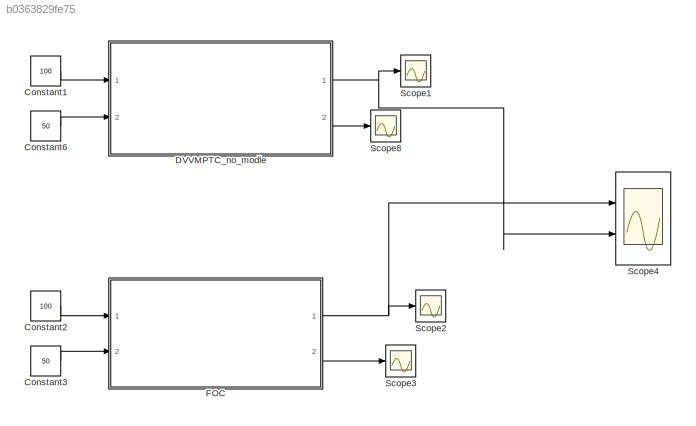
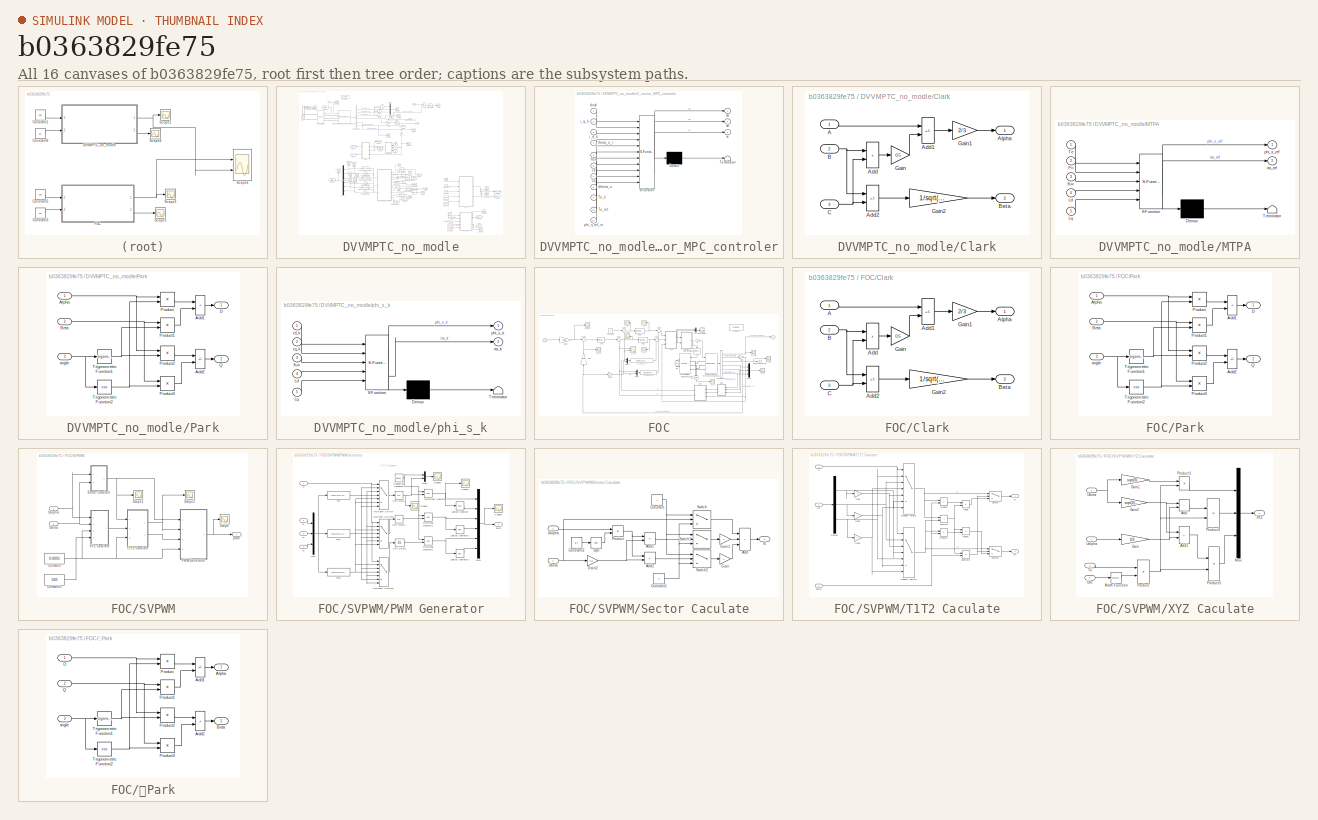
[diagram: thumbnail index - all 16 canvases of the model, root first then tree order]
MODEL slx_b0363829fe75
KIND model
CONFIG AbsTol = auto
CONFIG EnableMultiTasking = off
CONFIG FixedStep = auto
CONFIG MaxStep = auto
CONFIG MinStep = auto
CONFIG RelTol = 1e-3
CONFIG SampleTimeConstraint = Unconstrained
CONFIG SolverName = VariableStepAuto
CONFIG StartTime = 0.0
CONFIG StopTime = 10.0
BLOCK [Constant] Constant1
  Value = 100
BLOCK [Constant] Constant2
  Value = 100
BLOCK [Constant] Constant3
  Value = 50
BLOCK [Constant] Constant6
  Value = 50
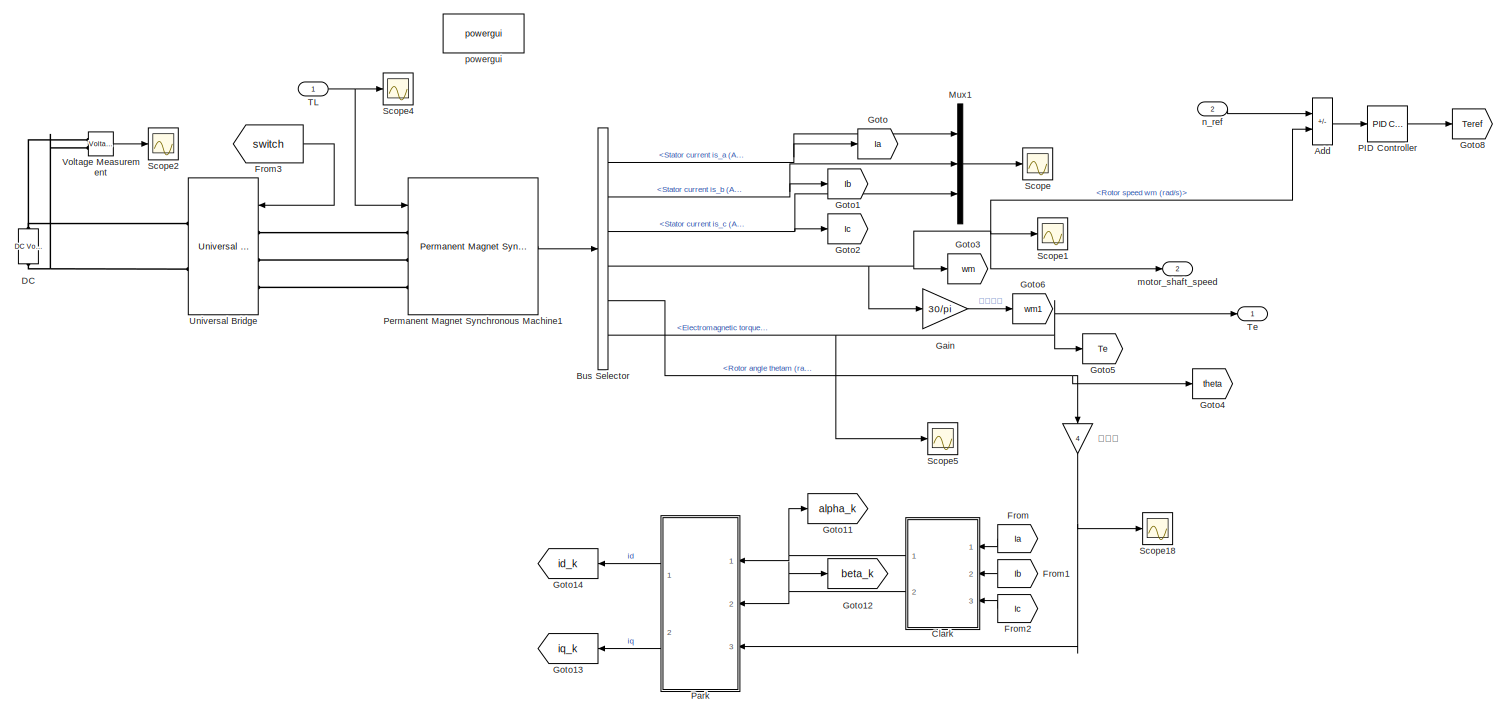
[diagram: DVVMPTC_no_modle - part 1/3, top center region]
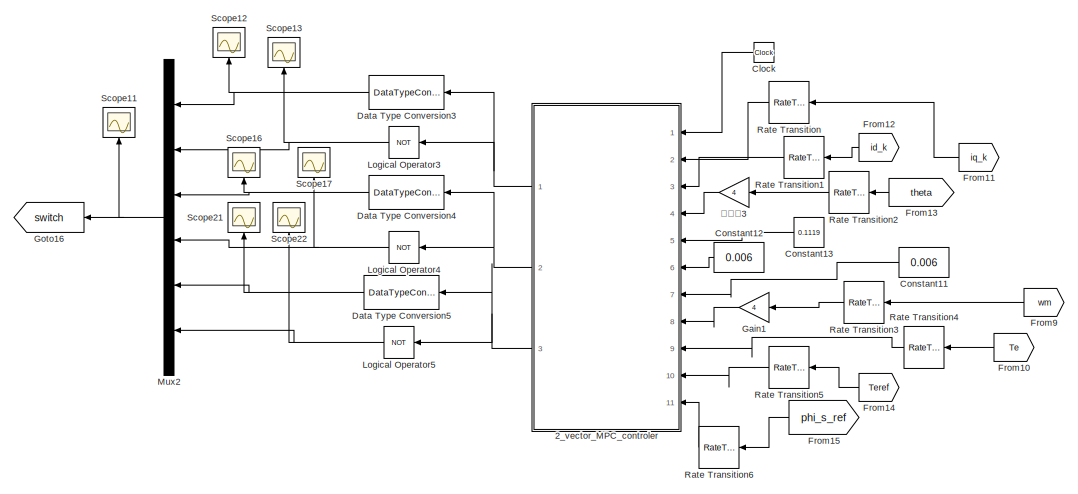
[diagram: DVVMPTC_no_modle - part 2/3, central region]
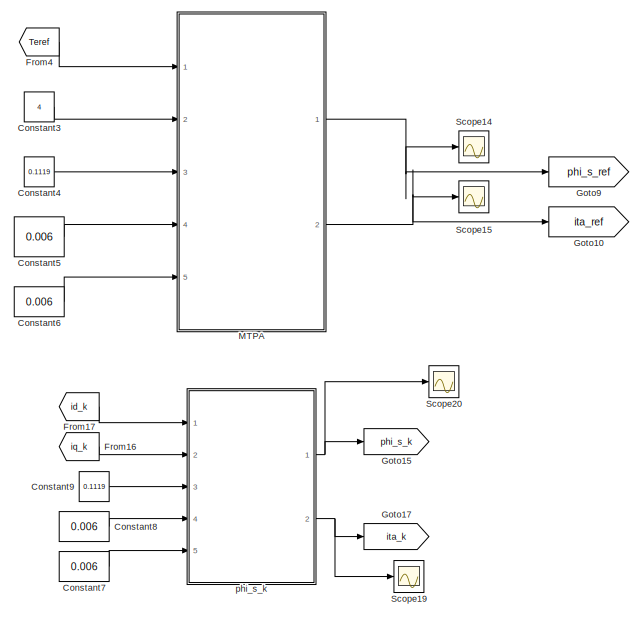
[diagram: DVVMPTC_no_modle - part 3/3, bottom right region]
BLOCK [SubSystem] DVVMPTC_no_modle
  Ports = [2, 2]
  RequestExecContextInheritance = off
BLOCK [SubSystem] DVVMPTC_no_modle/2_vector_MPC_controler
  ErrorFcn = Stateflow.Translate.translate
  NameLocation = top
  PermitHierarchicalResolution = ExplicitOnly
  Ports = [11, 3]
  RequestExecContextInheritance = off
  SFBlockType = MATLAB Function
  SystemSampleTime = 1e-5
  TreatAsAtomicUnit = on
BLOCK [Demux] DVVMPTC_no_modle/2_vector_MPC_controler/ Demux 
  Outputs = 1
  Ports = [1, 1]
BLOCK [S-Function] DVVMPTC_no_modle/2_vector_MPC_controler/ SFunction 
  EnableBusSupport = on
  FunctionName = sf_sfun
  PortCounts = [11 4]
  Ports = [11, 4]
  SFcnIsStateOwnerBlock = off
  SFunctionDeploymentMode = off
  Tag = Stateflow S-Function 1
BLOCK [Terminator] DVVMPTC_no_modle/2_vector_MPC_controler/ Terminator 
BLOCK [Inport] DVVMPTC_no_modle/2_vector_MPC_controler/Ld
  Port = 6
BLOCK [Inport] DVVMPTC_no_modle/2_vector_MPC_controler/Lq
  Port = 7
BLOCK [Inport] DVVMPTC_no_modle/2_vector_MPC_controler/Te_k
  Port = 9
BLOCK [Inport] DVVMPTC_no_modle/2_vector_MPC_controler/Te_ref
  Port = 10
BLOCK [Inport] DVVMPTC_no_modle/2_vector_MPC_controler/clock
BLOCK [Inport] DVVMPTC_no_modle/2_vector_MPC_controler/dtheta_e
  Port = 8
BLOCK [Inport] DVVMPTC_no_modle/2_vector_MPC_controler/flux
  Port = 5
BLOCK [Inport] DVVMPTC_no_modle/2_vector_MPC_controler/i_d_k
  Port = 3
BLOCK [Inport] DVVMPTC_no_modle/2_vector_MPC_controler/i_q_k
  Port = 2
BLOCK [Inport] DVVMPTC_no_modle/2_vector_MPC_controler/phi_s_ref_in
  Port = 11
BLOCK [Outport] DVVMPTC_no_modle/2_vector_MPC_controler/sa
BLOCK [Outport] DVVMPTC_no_modle/2_vector_MPC_controler/sb
  Port = 2
BLOCK [Outport] DVVMPTC_no_modle/2_vector_MPC_controler/sc
  Port = 3
BLOCK [Inport] DVVMPTC_no_modle/2_vector_MPC_controler/theta_e_r
  Port = 4
BLOCK [Sum] DVVMPTC_no_modle/Add
  IconShape = rectangular
  Inputs = +-
  Ports = [2, 1]
BLOCK [BusSelector] DVVMPTC_no_modle/Bus Selector
  OutputSignals = Stator current is_a (A),Stator current is_b (A),Stator current is_c (A),Rotor speed wm (rad/s),Rotor angle thetam (rad),Electromagnetic torque Te (N*m)
  Ports = [1, 6]
BLOCK [SubSystem] DVVMPTC_no_modle/Clark
  NameLocation = top
  Ports = [3, 2]
  RequestExecContextInheritance = off
BLOCK [Inport] DVVMPTC_no_modle/Clark/A
BLOCK [Sum] DVVMPTC_no_modle/Clark/Add
  IconShape = rectangular
  Ports = [2, 1]
BLOCK [Sum] DVVMPTC_no_modle/Clark/Add1
  IconShape = rectangular
  Inputs = +-
  Ports = [2, 1]
BLOCK [Sum] DVVMPTC_no_modle/Clark/Add2
  IconShape = rectangular
  Inputs = +-
  Ports = [2, 1]
BLOCK [Outport] DVVMPTC_no_modle/Clark/Alpha
BLOCK [Inport] DVVMPTC_no_modle/Clark/B
  Port = 2
BLOCK [Outport] DVVMPTC_no_modle/Clark/Beta
  Port = 2
BLOCK [Inport] DVVMPTC_no_modle/Clark/C
  Port = 3
BLOCK [Gain] DVVMPTC_no_modle/Clark/Gain
  Gain = 0.5
BLOCK [Gain] DVVMPTC_no_modle/Clark/Gain1
  Gain = 2/3
BLOCK [Gain] DVVMPTC_no_modle/Clark/Gain2
  Gain = 1/sqrt(3)
BLOCK [Clock] DVVMPTC_no_modle/Clock
  NameLocation = top
BLOCK [Constant] DVVMPTC_no_modle/Constant11
  NameLocation = top
  Value = 0.006
BLOCK [Constant] DVVMPTC_no_modle/Constant12
  NameLocation = top
  Value = 0.006
BLOCK [Constant] DVVMPTC_no_modle/Constant13
  NameLocation = top
  Value = 0.1119
BLOCK [Constant] DVVMPTC_no_modle/Constant3
  Value = 4
BLOCK [Constant] DVVMPTC_no_modle/Constant4
  Value = 0.1119
BLOCK [Constant] DVVMPTC_no_modle/Constant5
  Value = 0.006
BLOCK [Constant] DVVMPTC_no_modle/Constant6
  Value = 0.006
BLOCK [Constant] DVVMPTC_no_modle/Constant7
  Value = 0.006
BLOCK [Constant] DVVMPTC_no_modle/Constant8
  Value = 0.006
BLOCK [Constant] DVVMPTC_no_modle/Constant9
  Value = 0.1119
BLOCK [Reference] DVVMPTC_no_modle/DC  REF=spsDCVoltageSourceLib/DC Voltage Source
  NameLocation = left
  Ports = [0, 0, 0, 0, 0, 1, 1]
  SourceBlock = spsDCVoltageSourceLib/DC Voltage Source
  SourceProductBaseCode = PS
  SourceType = DC Voltage Source
BLOCK [DataTypeConversion] DVVMPTC_no_modle/Data Type Conversion3
  NameLocation = top
  RndMeth = Floor
  SaturateOnIntegerOverflow = off
BLOCK [DataTypeConversion] DVVMPTC_no_modle/Data Type Conversion4
  NameLocation = top
  RndMeth = Floor
  SaturateOnIntegerOverflow = off
BLOCK [DataTypeConversion] DVVMPTC_no_modle/Data Type Conversion5
  NameLocation = top
  RndMeth = Floor
  SaturateOnIntegerOverflow = off
BLOCK [From] DVVMPTC_no_modle/From
  GotoTag = Ia
  NameLocation = top
BLOCK [From] DVVMPTC_no_modle/From1
  GotoTag = Ib
  NameLocation = top
BLOCK [From] DVVMPTC_no_modle/From10
  GotoTag = Te
  NameLocation = top
BLOCK [From] DVVMPTC_no_modle/From11
  GotoTag = iq_k
  NameLocation = top
BLOCK [From] DVVMPTC_no_modle/From12
  GotoTag = id_k
  NameLocation = top
BLOCK [From] DVVMPTC_no_modle/From13
  GotoTag = theta
  NameLocation = top
BLOCK [From] DVVMPTC_no_modle/From14
  GotoTag = Teref
  NameLocation = top
BLOCK [From] DVVMPTC_no_modle/From15
  GotoTag = phi_s_ref
  NameLocation = top
BLOCK [From] DVVMPTC_no_modle/From16
  GotoTag = iq_k
BLOCK [From] DVVMPTC_no_modle/From17
  GotoTag = id_k
BLOCK [From] DVVMPTC_no_modle/From2
  GotoTag = Ic
  NameLocation = top
BLOCK [From] DVVMPTC_no_modle/From3
  GotoTag = switch
BLOCK [From] DVVMPTC_no_modle/From4
  GotoTag = Teref
BLOCK [From] DVVMPTC_no_modle/From9
  GotoTag = wm
  NameLocation = top
BLOCK [Gain] DVVMPTC_no_modle/Gain
  Gain = 30/pi
BLOCK [Gain] DVVMPTC_no_modle/Gain1
  Gain = 4
  NameLocation = top
BLOCK [Goto] DVVMPTC_no_modle/Goto
  GotoTag = Ia
BLOCK [Goto] DVVMPTC_no_modle/Goto1
  GotoTag = Ib
BLOCK [Goto] DVVMPTC_no_modle/Goto10
  GotoTag = ita_ref
BLOCK [Goto] DVVMPTC_no_modle/Goto11
  GotoTag = alpha_k
BLOCK [Goto] DVVMPTC_no_modle/Goto12
  GotoTag = beta_k
BLOCK [Goto] DVVMPTC_no_modle/Goto13
  GotoTag = iq_k
  NameLocation = top
BLOCK [Goto] DVVMPTC_no_modle/Goto14
  GotoTag = id_k
  NameLocation = top
BLOCK [Goto] DVVMPTC_no_modle/Goto15
  GotoTag = phi_s_k
BLOCK [Goto] DVVMPTC_no_modle/Goto16
  GotoTag = switch
  NameLocation = top
BLOCK [Goto] DVVMPTC_no_modle/Goto17
  GotoTag = ita_k
BLOCK [Goto] DVVMPTC_no_modle/Goto2
  GotoTag = Ic
BLOCK [Goto] DVVMPTC_no_modle/Goto3
  GotoTag = wm
BLOCK [Goto] DVVMPTC_no_modle/Goto4
  GotoTag = theta
BLOCK [Goto] DVVMPTC_no_modle/Goto5
  GotoTag = Te
BLOCK [Goto] DVVMPTC_no_modle/Goto6
  GotoTag = wm1
BLOCK [Goto] DVVMPTC_no_modle/Goto8
  GotoTag = Teref
BLOCK [Goto] DVVMPTC_no_modle/Goto9
  GotoTag = phi_s_ref
BLOCK [Logic] DVVMPTC_no_modle/Logical Operator3
  AllPortsSameDT = off
  NameLocation = top
  Operator = NOT
  OutDataTypeStr = boolean
  Ports = [1, 1]
BLOCK [Logic] DVVMPTC_no_modle/Logical Operator4
  AllPortsSameDT = off
  NameLocation = top
  Operator = NOT
  OutDataTypeStr = boolean
  Ports = [1, 1]
BLOCK [Logic] DVVMPTC_no_modle/Logical Operator5
  AllPortsSameDT = off
  NameLocation = top
  Operator = NOT
  OutDataTypeStr = boolean
  Ports = [1, 1]
BLOCK [SubSystem] DVVMPTC_no_modle/MTPA
  ErrorFcn = Stateflow.Translate.translate
  PermitHierarchicalResolution = ExplicitOnly
  Ports = [5, 2]
  RequestExecContextInheritance = off
  SFBlockType = MATLAB Function
  TreatAsAtomicUnit = on
BLOCK [Demux] DVVMPTC_no_modle/MTPA/ Demux 
  Outputs = 1
  Ports = [1, 1]
BLOCK [S-Function] DVVMPTC_no_modle/MTPA/ SFunction 
  EnableBusSupport = on
  FunctionName = sf_sfun
  PortCounts = [5 3]
  Ports = [5, 3]
  SFcnIsStateOwnerBlock = off
  SFunctionDeploymentMode = off
  Tag = Stateflow S-Function 2
BLOCK [Terminator] DVVMPTC_no_modle/MTPA/ Terminator 
BLOCK [Inport] DVVMPTC_no_modle/MTPA/Ld
  Port = 4
BLOCK [Inport] DVVMPTC_no_modle/MTPA/Lq
  Port = 5
BLOCK [Inport] DVVMPTC_no_modle/MTPA/Pn
  Port = 2
BLOCK [Inport] DVVMPTC_no_modle/MTPA/Te
BLOCK [Inport] DVVMPTC_no_modle/MTPA/flux
  Port = 3
BLOCK [Outport] DVVMPTC_no_modle/MTPA/ita_ref
  Port = 2
BLOCK [Outport] DVVMPTC_no_modle/MTPA/phi_s_ref
BLOCK [Mux] DVVMPTC_no_modle/Mux1
  DisplayOption = bar
  Inputs = 3
  Ports = [3, 1]
BLOCK [Mux] DVVMPTC_no_modle/Mux2
  DisplayOption = bar
  Inputs = 6
  NameLocation = top
  Ports = [6, 1]
BLOCK [Reference] DVVMPTC_no_modle/PID Controller  REF=pid_lib/PID Controller
  Ports = [1, 1]
  SourceBlock = pid_lib/PID Controller
  SourceProductBaseCode = SL
  SourceType = PID 1dof
BLOCK [SubSystem] DVVMPTC_no_modle/Park
  NameLocation = top
  Ports = [3, 2]
  RequestExecContextInheritance = off
BLOCK [Sum] DVVMPTC_no_modle/Park/Add1
  IconShape = rectangular
  Ports = [2, 1]
BLOCK [Sum] DVVMPTC_no_modle/Park/Add2
  IconShape = rectangular
  Inputs = -+
  Ports = [2, 1]
BLOCK [Inport] DVVMPTC_no_modle/Park/Alpha
BLOCK [Inport] DVVMPTC_no_modle/Park/Beta
  Port = 2
BLOCK [Outport] DVVMPTC_no_modle/Park/D
BLOCK [Product] DVVMPTC_no_modle/Park/Product
  Ports = [2, 1]
BLOCK [Product] DVVMPTC_no_modle/Park/Product1
  Ports = [2, 1]
BLOCK [Product] DVVMPTC_no_modle/Park/Product2
  Ports = [2, 1]
BLOCK [Product] DVVMPTC_no_modle/Park/Product3
  Ports = [2, 1]
BLOCK [Outport] DVVMPTC_no_modle/Park/Q
  Port = 2
BLOCK [Trigonometry] DVVMPTC_no_modle/Park/Trigonometric Function1
  Ports = [1, 1]
BLOCK [Trigonometry] DVVMPTC_no_modle/Park/Trigonometric Function2
  Operator = cos
  Ports = [1, 1]
BLOCK [Inport] DVVMPTC_no_modle/Park/angle
  Port = 3
BLOCK [Reference] DVVMPTC_no_modle/Permanent Magnet Synchronous Machine1  REF=spsPermanentMagnetSynchronousMachineLib/Permanent Magnet
Synchronous Machine
  Ports = [1, 1, 0, 0, 0, 3]
  SourceBlock = spsPermanentMagnetSynchronousMachineLib/Permanent Magnet\nSynchronous Machine
  SourceProductBaseCode = PS
  SourceType = Permanent Magnet Synchronous Machine
BLOCK [RateTransition] DVVMPTC_no_modle/Rate Transition
  NameLocation = top
  OutPortSampleTime = 1e-5
BLOCK [RateTransition] DVVMPTC_no_modle/Rate Transition1
  NameLocation = top
  OutPortSampleTime = 1e-5
BLOCK [RateTransition] DVVMPTC_no_modle/Rate Transition2
  NameLocation = top
  OutPortSampleTime = 1e-5
BLOCK [RateTransition] DVVMPTC_no_modle/Rate Transition3
  NameLocation = top
  OutPortSampleTime = 1e-4
BLOCK [RateTransition] DVVMPTC_no_modle/Rate Transition4
  NameLocation = top
  OutPortSampleTime = 1e-4
BLOCK [RateTransition] DVVMPTC_no_modle/Rate Transition5
  NameLocation = top
  OutPortSampleTime = 1e-4
BLOCK [RateTransition] DVVMPTC_no_modle/Rate Transition6
  NameLocation = top
  OutPortSampleTime = 1e-4
BLOCK [Scope] DVVMPTC_no_modle/Scope
  Floating = off
  NumInputPorts = 1
  Ports = [1]
  ScopeSpecificationString = Simulink.scopes.TimeScopeBlockCfg('CurrentConfiguration', extmgr.ConfigurationSet(extmgr.Configuration('Core','General UI',true),extmgr.Configuration('Core','Source UI',true),extmgr.Configuration('Sources','WiredSimulink',true,'DataLoggingVariableName','ScopeData12'),extmgr.Configuration('Visuals','Time Domain',true,'SerializedDisplays',{struct('MinYLimReal','-45.06747','MaxYLimReal','82.74664','Y...<+1520ch>
BLOCK [Scope] DVVMPTC_no_modle/Scope1
  Floating = off
  NumInputPorts = 1
  Ports = [1]
  ScopeSpecificationString = Simulink.scopes.TimeScopeBlockCfg('CurrentConfiguration', extmgr.ConfigurationSet(extmgr.Configuration('Core','General UI',true),extmgr.Configuration('Core','Source UI',true),extmgr.Configuration('Sources','WiredSimulink',true,'DataLoggingVariableName','ScopeData13'),extmgr.Configuration('Visuals','Time Domain',true,'SerializedDisplays',{struct('MinYLimReal','-9.01529','MaxYLimReal','69.35555','YL...<+1468ch>
BLOCK [Scope] DVVMPTC_no_modle/Scope11
  Floating = off
  NameLocation = right
  NumInputPorts = 1
  Ports = [1]
  ScopeSpecificationString = Simulink.scopes.TimeScopeBlockCfg('CurrentConfiguration', extmgr.ConfigurationSet(extmgr.Configuration('Core','General UI',true),extmgr.Configuration('Core','Source UI',true),extmgr.Configuration('Sources','WiredSimulink',true,'DataLoggingVariableName','ScopeData7'),extmgr.Configuration('Visuals','Time Domain',true,'SerializedDisplays',{struct('MinYLimReal','-0.125','MaxYLimReal','1.125','YLabelRe...<+1576ch>
BLOCK [Scope] DVVMPTC_no_modle/Scope12
  Floating = off
  NameLocation = right
  NumInputPorts = 1
  Ports = [1]
  ScopeSpecificationString = Simulink.scopes.TimeScopeBlockCfg('CurrentConfiguration', extmgr.ConfigurationSet(extmgr.Configuration('Core','General UI',true),extmgr.Configuration('Core','Source UI',true),extmgr.Configuration('Sources','WiredSimulink',true,'DataLoggingVariableName','ScopeData3'),extmgr.Configuration('Visuals','Time Domain',true,'SerializedDisplays',{struct('MinYLimReal','-0.125','MaxYLimReal','1.125','YLabelRe...<+1441ch>
BLOCK [Scope] DVVMPTC_no_modle/Scope13
  Floating = off
  NameLocation = right
  NumInputPorts = 1
  Ports = [1]
  ScopeSpecificationString = Simulink.scopes.TimeScopeBlockCfg('CurrentConfiguration', extmgr.ConfigurationSet(extmgr.Configuration('Core','General UI',true),extmgr.Configuration('Core','Source UI',true),extmgr.Configuration('Sources','WiredSimulink',true,'DataLoggingVariableName','ScopeData4'),extmgr.Configuration('Visuals','Time Domain',true,'SerializedDisplays',{struct('MinYLimReal','-0.125','MaxYLimReal','1.125','YLabelRe...<+1464ch>
BLOCK [Scope] DVVMPTC_no_modle/Scope14
  Floating = off
  NumInputPorts = 1
  Ports = [1]
  ScopeSpecificationString = Simulink.scopes.TimeScopeBlockCfg('CurrentConfiguration', extmgr.ConfigurationSet(extmgr.Configuration('Core','General UI',true),extmgr.Configuration('Core','Source UI',true),extmgr.Configuration('Sources','WiredSimulink',true,'DataLoggingVariableName','ScopeData3'),extmgr.Configuration('Visuals','Time Domain',true,'SerializedDisplays',{struct('MinYLimReal','0.36063','MaxYLimReal','0.56063','YLabe...<+1415ch>
BLOCK [Scope] DVVMPTC_no_modle/Scope15
  Floating = off
  NumInputPorts = 1
  Ports = [1]
  ScopeSpecificationString = Simulink.scopes.TimeScopeBlockCfg('CurrentConfiguration', extmgr.ConfigurationSet(extmgr.Configuration('Core','General UI',true),extmgr.Configuration('Core','Source UI',true),extmgr.Configuration('Sources','WiredSimulink',true,'DataLoggingVariableName','ScopeData4'),extmgr.Configuration('Visuals','Time Domain',true,'SerializedDisplays',{struct('MinYLimReal','0.01743','MaxYLimReal','2.01743','YLabe...<+1413ch>
BLOCK [Scope] DVVMPTC_no_modle/Scope16
  Floating = off
  NameLocation = right
  NumInputPorts = 1
  Ports = [1]
  ScopeSpecificationString = Simulink.scopes.TimeScopeBlockCfg('CurrentConfiguration', extmgr.ConfigurationSet(extmgr.Configuration('Core','General UI',true),extmgr.Configuration('Core','Source UI',true),extmgr.Configuration('Sources','WiredSimulink',true,'DataLoggingVariableName','ScopeData5'),extmgr.Configuration('Visuals','Time Domain',true,'SerializedDisplays',{struct('MinYLimReal','-0.125','MaxYLimReal','1.125','YLabelRe...<+1468ch>
BLOCK [Scope] DVVMPTC_no_modle/Scope17
  Floating = off
  NameLocation = right
  NumInputPorts = 1
  Ports = [1]
  ScopeSpecificationString = Simulink.scopes.TimeScopeBlockCfg('CurrentConfiguration', extmgr.ConfigurationSet(extmgr.Configuration('Core','General UI',true),extmgr.Configuration('Core','Source UI',true),extmgr.Configuration('Sources','WiredSimulink',true,'DataLoggingVariableName','ScopeData6'),extmgr.Configuration('Visuals','Time Domain',true,'SerializedDisplays',{struct('MinYLimReal','-0.125','MaxYLimReal','1.125','YLabelRe...<+1576ch>
BLOCK [Scope] DVVMPTC_no_modle/Scope18
  Floating = off
  NumInputPorts = 1
  Ports = [1]
  ScopeSpecificationString = Simulink.scopes.TimeScopeBlockCfg('CurrentConfiguration', extmgr.ConfigurationSet(extmgr.Configuration('Core','General UI',true),extmgr.Configuration('Core','Source UI',true),extmgr.Configuration('Sources','WiredSimulink',true,'DataLoggingVariableName','ScopeData1'),extmgr.Configuration('Visuals','Time Domain',true,'SerializedDisplays',{struct('MinYLimReal','-901.11475','MaxYLimReal','8110.03244',...<+1457ch>
BLOCK [Scope] DVVMPTC_no_modle/Scope19
  Floating = off
  NumInputPorts = 1
  Ports = [1]
  ScopeSpecificationString = Simulink.scopes.TimeScopeBlockCfg('CurrentConfiguration', extmgr.ConfigurationSet(extmgr.Configuration('Core','General UI',true),extmgr.Configuration('Core','Source UI',true),extmgr.Configuration('Sources','WiredSimulink',true,'DataLoggingVariableName','ScopeData1'),extmgr.Configuration('Visuals','Time Domain',true,'SerializedDisplays',{struct('MinYLimReal','-0.16351','MaxYLimReal','1.17013','YLab...<+1416ch>
BLOCK [Scope] DVVMPTC_no_modle/Scope2
  Floating = off
  NumInputPorts = 1
  Ports = [1]
  ScopeSpecificationString = Simulink.scopes.TimeScopeBlockCfg('CurrentConfiguration', extmgr.ConfigurationSet(extmgr.Configuration('Core','General UI',true),extmgr.Configuration('Core','Source UI',true),extmgr.Configuration('Sources','WiredSimulink',true,'DataLoggingVariableName','ScopeData9'),extmgr.Configuration('Visuals','Time Domain',true,'SerializedDisplays',{struct('MinYLimReal','300.00000','MaxYLimReal','500.00000','Y...<+1417ch>
BLOCK [Scope] DVVMPTC_no_modle/Scope20
  Floating = off
  NumInputPorts = 1
  Ports = [1]
  ScopeSpecificationString = Simulink.scopes.TimeScopeBlockCfg('CurrentConfiguration', extmgr.ConfigurationSet(extmgr.Configuration('Core','General UI',true),extmgr.Configuration('Core','Source UI',true),extmgr.Configuration('Sources','WiredSimulink',true,'DataLoggingVariableName','ScopeData9'),extmgr.Configuration('Visuals','Time Domain',true,'SerializedDisplays',{struct('MinYLimReal','0.1027','MaxYLimReal','0.19473','YLabel...<+1412ch>
BLOCK [Scope] DVVMPTC_no_modle/Scope21
  Floating = off
  NameLocation = right
  NumInputPorts = 1
  Ports = [1]
  ScopeSpecificationString = Simulink.scopes.TimeScopeBlockCfg('CurrentConfiguration', extmgr.ConfigurationSet(extmgr.Configuration('Core','General UI',true),extmgr.Configuration('Core','Source UI',true),extmgr.Configuration('Sources','WiredSimulink',true,'DataLoggingVariableName','ScopeData7'),extmgr.Configuration('Visuals','Time Domain',true,'SerializedDisplays',{struct('MinYLimReal','-0.125','MaxYLimReal','1.125','YLabelRe...<+1468ch>
BLOCK [Scope] DVVMPTC_no_modle/Scope22
  Floating = off
  NameLocation = right
  NumInputPorts = 1
  Ports = [1]
  ScopeSpecificationString = Simulink.scopes.TimeScopeBlockCfg('CurrentConfiguration', extmgr.ConfigurationSet(extmgr.Configuration('Core','General UI',true),extmgr.Configuration('Core','Source UI',true),extmgr.Configuration('Sources','WiredSimulink',true,'DataLoggingVariableName','ScopeData8'),extmgr.Configuration('Visuals','Time Domain',true,'SerializedDisplays',{struct('MinYLimReal','-0.125','MaxYLimReal','1.125','YLabelRe...<+1576ch>
BLOCK [Scope] DVVMPTC_no_modle/Scope4
  Floating = off
  NumInputPorts = 1
  Ports = [1]
  ScopeSpecificationString = Simulink.scopes.TimeScopeBlockCfg('CurrentConfiguration', extmgr.ConfigurationSet(extmgr.Configuration('Core','General UI',true),extmgr.Configuration('Core','Source UI',true),extmgr.Configuration('Sources','WiredSimulink',true,'DataLoggingVariableName','ScopeData13'),extmgr.Configuration('Visuals','Time Domain',true,'SerializedDisplays',{struct('MinYLimReal','-395.97732','MaxYLimReal','438.07507',...<+1491ch>
BLOCK [Scope] DVVMPTC_no_modle/Scope5
  Floating = off
  NumInputPorts = 1
  Ports = [1]
  ScopeSpecificationString = Simulink.scopes.TimeScopeBlockCfg('CurrentConfiguration', extmgr.ConfigurationSet(extmgr.Configuration('Core','General UI',true),extmgr.Configuration('Core','Source UI',true),extmgr.Configuration('Sources','WiredSimulink',true,'DataLoggingVariableName','ScopeData17'),extmgr.Configuration('Visuals','Time Domain',true,'SerializedDisplays',{struct('MinYLimReal','-6.43725','MaxYLimReal','57.93522','YL...<+1470ch>
BLOCK [Inport] DVVMPTC_no_modle/TL
BLOCK [Outport] DVVMPTC_no_modle/Te
BLOCK [Reference] DVVMPTC_no_modle/Universal Bridge  REF=spsUniversalBridgeLib/Universal Bridge
  Ports = [1, 0, 0, 0, 0, 3, 2]
  SourceBlock = spsUniversalBridgeLib/Universal Bridge
  SourceProductBaseCode = PS
  SourceType = Universal Bridge
BLOCK [Reference] DVVMPTC_no_modle/Voltage Measurement  REF=spsVoltageMeasurementLib/Voltage Measurement
  Ports = [0, 1, 0, 0, 0, 2]
  SourceBlock = spsVoltageMeasurementLib/Voltage Measurement
  SourceProductBaseCode = PS
  SourceType = Voltage Measurement
  UserDataPersistent = on
BLOCK [Outport] DVVMPTC_no_modle/motor_shaft_speed
  Port = 2
BLOCK [Inport] DVVMPTC_no_modle/n_ref
  Port = 2
BLOCK [SubSystem] DVVMPTC_no_modle/phi_s_k
  ErrorFcn = Stateflow.Translate.translate
  PermitHierarchicalResolution = ExplicitOnly
  Ports = [5, 2]
  RequestExecContextInheritance = off
  SFBlockType = MATLAB Function
  TreatAsAtomicUnit = on
BLOCK [Demux] DVVMPTC_no_modle/phi_s_k/ Demux 
  Outputs = 1
  Ports = [1, 1]
BLOCK [S-Function] DVVMPTC_no_modle/phi_s_k/ SFunction 
  EnableBusSupport = on
  FunctionName = sf_sfun
  PortCounts = [5 3]
  Ports = [5, 3]
  SFcnIsStateOwnerBlock = off
  SFunctionDeploymentMode = off
  Tag = Stateflow S-Function 3
BLOCK [Terminator] DVVMPTC_no_modle/phi_s_k/ Terminator 
BLOCK [Inport] DVVMPTC_no_modle/phi_s_k/Ld
  Port = 4
BLOCK [Inport] DVVMPTC_no_modle/phi_s_k/Lq
  Port = 5
BLOCK [Inport] DVVMPTC_no_modle/phi_s_k/flux
  Port = 3
BLOCK [Inport] DVVMPTC_no_modle/phi_s_k/id_k
BLOCK [Inport] DVVMPTC_no_modle/phi_s_k/iq_k
  Port = 2
BLOCK [Outport] DVVMPTC_no_modle/phi_s_k/ita_k
  Port = 2
BLOCK [Outport] DVVMPTC_no_modle/phi_s_k/phi_s_k
BLOCK [Reference] DVVMPTC_no_modle/powergui  REF=spspowerguiLib/powergui
  Ports = []
  Priority = 1
  SourceBlock = spspowerguiLib/powergui
  SourceProductBaseCode = PS
  SourceType = PSB option menu block
BLOCK [Gain] DVVMPTC_no_modle/极对数
  Gain = 4
  NameLocation = left
BLOCK [Gain] DVVMPTC_no_modle/极对数3
  Gain = 4
  NameLocation = top
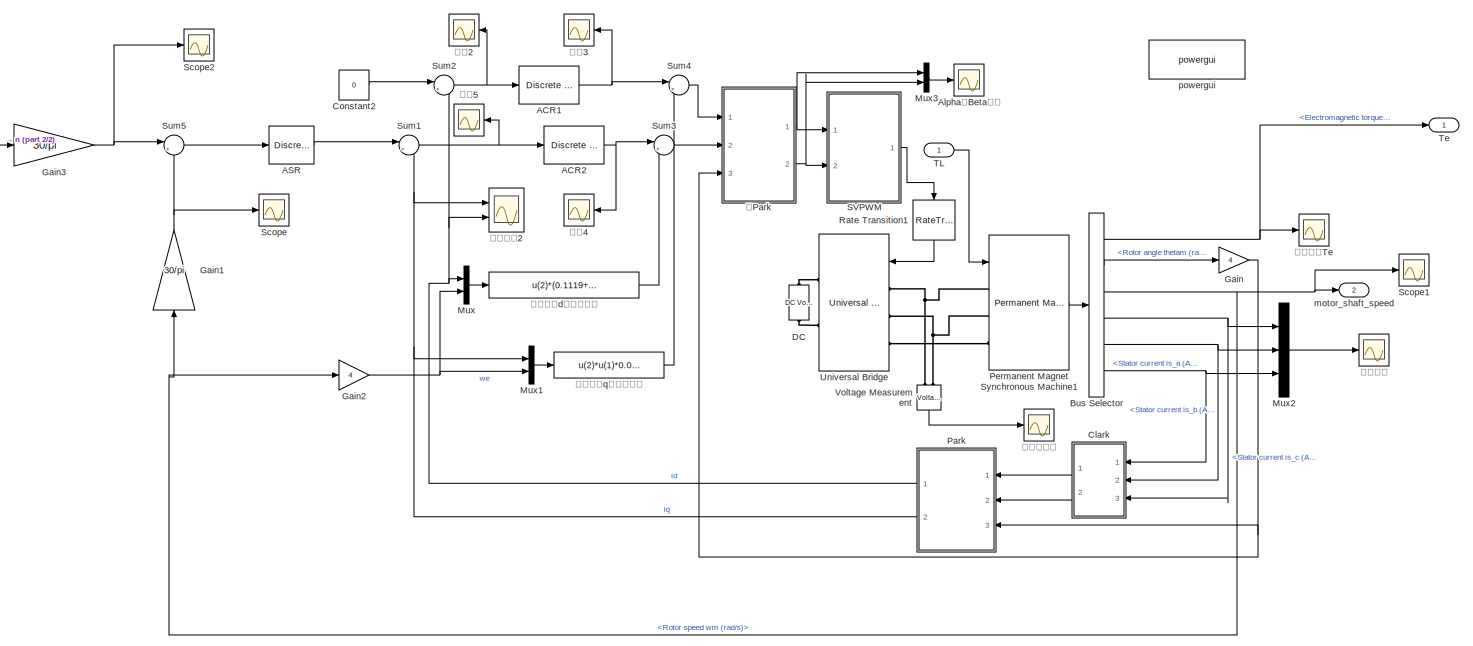
[diagram: FOC - part 1/2, most of the canvas]
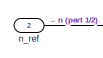
[diagram: FOC - part 2/2, top left region]
BLOCK [SubSystem] FOC
  Ports = [2, 2]
  RequestExecContextInheritance = off
BLOCK [Reference] FOC/ACR1  REF=powerlib_extras/Discrete 
Control Blocks/Discrete
PI Controller
  Ports = [1, 1]
  SourceBlock = powerlib_extras/Discrete \nControl Blocks/Discrete\nPI Controller
  SourceProductBaseCode = PS
  SourceType = Discrete PI Controller
BLOCK [Reference] FOC/ACR2  REF=powerlib_extras/Discrete 
Control Blocks/Discrete
PI Controller
  Ports = [1, 1]
  SourceBlock = powerlib_extras/Discrete \nControl Blocks/Discrete\nPI Controller
  SourceProductBaseCode = PS
  SourceType = Discrete PI Controller
BLOCK [Reference] FOC/ASR  REF=powerlib_extras/Discrete 
Control Blocks/Discrete
PI Controller
  Ports = [1, 1]
  SourceBlock = powerlib_extras/Discrete \nControl Blocks/Discrete\nPI Controller
  SourceProductBaseCode = PS
  SourceType = Discrete PI Controller
BLOCK [Scope] FOC/Alpha、Beta电压
  Floating = off
  NumInputPorts = 1
  Ports = [1]
  ScopeSpecificationString = Simulink.scopes.TimeScopeBlockCfg('CurrentConfiguration', extmgr.ConfigurationSet(extmgr.Configuration('Core','General UI',true),extmgr.Configuration('Core','Source UI',true),extmgr.Configuration('Sources','WiredSimulink',true,'DataLoggingVariableName','ScopeData1','DataLoggingSaveFormat','StructureWithTime','SampleTime','0.00001','DataLoggingDecimation','1','DataLoggingDecimateData',true),extmgr....<+1766ch>
BLOCK [BusSelector] FOC/Bus Selector
  OutputSignals = Electromagnetic torque Te (N*m),Rotor angle thetam (rad),Rotor speed wm (rad/s),Stator current is_c (A),Stator current is_b (A),Stator current is_a (A)
  Ports = [1, 6]
BLOCK [SubSystem] FOC/Clark
  NameLocation = top
  Ports = [3, 2]
  RequestExecContextInheritance = off
BLOCK [Inport] FOC/Clark/A
BLOCK [Sum] FOC/Clark/Add
  IconShape = rectangular
  Ports = [2, 1]
BLOCK [Sum] FOC/Clark/Add1
  IconShape = rectangular
  Inputs = +-
  Ports = [2, 1]
BLOCK [Sum] FOC/Clark/Add2
  IconShape = rectangular
  Inputs = +-
  Ports = [2, 1]
BLOCK [Outport] FOC/Clark/Alpha
BLOCK [Inport] FOC/Clark/B
  Port = 2
BLOCK [Outport] FOC/Clark/Beta
  Port = 2
BLOCK [Inport] FOC/Clark/C
  Port = 3
BLOCK [Gain] FOC/Clark/Gain
  Gain = 0.5
BLOCK [Gain] FOC/Clark/Gain1
  Gain = 2/3
BLOCK [Gain] FOC/Clark/Gain2
  Gain = 1/sqrt(3)
BLOCK [Constant] FOC/Constant2
  Value = 0
BLOCK [Reference] FOC/DC  REF=spsDCVoltageSourceLib/DC Voltage Source
  NameLocation = left
  Ports = [0, 0, 0, 0, 0, 1, 1]
  SourceBlock = spsDCVoltageSourceLib/DC Voltage Source
  SourceProductBaseCode = PS
  SourceType = DC Voltage Source
BLOCK [Gain] FOC/Gain
  Gain = 4
BLOCK [Gain] FOC/Gain1
  Gain = 30/pi
  NameLocation = right
BLOCK [Gain] FOC/Gain2
  Gain = 4
BLOCK [Gain] FOC/Gain3
  Gain = 30/pi
BLOCK [Mux] FOC/Mux
  DisplayOption = bar
  Inputs = 2
  Ports = [2, 1]
BLOCK [Mux] FOC/Mux1
  DisplayOption = bar
  Inputs = 2
  Ports = [2, 1]
BLOCK [Mux] FOC/Mux2
  DisplayOption = bar
  Inputs = 3
  Ports = [3, 1]
BLOCK [Mux] FOC/Mux3
  DisplayOption = bar
  Inputs = 2
  Ports = [2, 1]
BLOCK [SubSystem] FOC/Park
  NameLocation = top
  Ports = [3, 2]
  RequestExecContextInheritance = off
BLOCK [Sum] FOC/Park/Add1
  IconShape = rectangular
  Ports = [2, 1]
BLOCK [Sum] FOC/Park/Add2
  IconShape = rectangular
  Inputs = -+
  Ports = [2, 1]
BLOCK [Inport] FOC/Park/Alpha
BLOCK [Inport] FOC/Park/Beta
  Port = 2
BLOCK [Outport] FOC/Park/D
BLOCK [Product] FOC/Park/Product
  Ports = [2, 1]
BLOCK [Product] FOC/Park/Product1
  Ports = [2, 1]
BLOCK [Product] FOC/Park/Product2
  Ports = [2, 1]
BLOCK [Product] FOC/Park/Product3
  Ports = [2, 1]
BLOCK [Outport] FOC/Park/Q
  Port = 2
BLOCK [Trigonometry] FOC/Park/Trigonometric Function1
  Ports = [1, 1]
BLOCK [Trigonometry] FOC/Park/Trigonometric Function2
  Operator = cos
  Ports = [1, 1]
BLOCK [Inport] FOC/Park/angle
  Port = 3
BLOCK [Reference] FOC/Permanent Magnet Synchronous Machine1  REF=spsPermanentMagnetSynchronousMachineLib/Permanent Magnet
Synchronous Machine
  Ports = [1, 1, 0, 0, 0, 3]
  SourceBlock = spsPermanentMagnetSynchronousMachineLib/Permanent Magnet\nSynchronous Machine
  SourceProductBaseCode = PS
  SourceType = Permanent Magnet Synchronous Machine
BLOCK [RateTransition] FOC/Rate Transition1
  NameLocation = left
  OutPortSampleTime = 1e-5
BLOCK [SubSystem] FOC/SVPWM
  Ports = [2, 1]
  RequestExecContextInheritance = off
BLOCK [Constant] FOC/SVPWM/Constant
  Value = 0.0001
BLOCK [Constant] FOC/SVPWM/Constant1
  Value = 560
BLOCK [SubSystem] FOC/SVPWM/PWM Generator
  Ports = [4, 1]
  RequestExecContextInheritance = off
BLOCK [Fcn] FOC/SVPWM/PWM Generator/Fcn
  Expr = (u(3)-u(1)-u(2))/4
BLOCK [Fcn] FOC/SVPWM/PWM Generator/Fcn1
  Expr = (u(3)+u(1)-u(2))/4
BLOCK [Fcn] FOC/SVPWM/PWM Generator/Fcn2
  Expr = (u(3)+u(1)+u(2))/4
BLOCK [Logic] FOC/SVPWM/PWM Generator/Logical Operator
  AllPortsSameDT = off
  Operator = NOT
  OutDataTypeStr = boolean
  Ports = [1, 1]
BLOCK [Logic] FOC/SVPWM/PWM Generator/Logical Operator1
  AllPortsSameDT = off
  Operator = NOT
  OutDataTypeStr = boolean
  Ports = [1, 1]
BLOCK [Logic] FOC/SVPWM/PWM Generator/Logical Operator2
  AllPortsSameDT = off
  Operator = NOT
  OutDataTypeStr = boolean
  Ports = [1, 1]
BLOCK [MultiPortSwitch] FOC/SVPWM/PWM Generator/Multiport Switch
  DiagnosticForDefault = None
  InputSameDT = off
  Inputs = 6
  Ports = [7, 1]
  SaturateOnIntegerOverflow = off
BLOCK [MultiPortSwitch] FOC/SVPWM/PWM Generator/Multiport Switch1
  DiagnosticForDefault = None
  InputSameDT = off
  Inputs = 6
  Ports = [7, 1]
  SaturateOnIntegerOverflow = off
BLOCK [MultiPortSwitch] FOC/SVPWM/PWM Generator/Multiport Switch2
  DiagnosticForDefault = None
  InputSameDT = off
  Inputs = 6
  Ports = [7, 1]
  SaturateOnIntegerOverflow = off
BLOCK [Mux] FOC/SVPWM/PWM Generator/Mux
  DisplayOption = bar
  Inputs = 3
  Ports = [3, 1]
BLOCK [Mux] FOC/SVPWM/PWM Generator/Mux1
  DisplayOption = bar
  Inputs = 2
  Ports = [2, 1]
BLOCK [Mux] FOC/SVPWM/PWM Generator/Mux2
  DisplayOption = bar
  Inputs = 6
  Ports = [6, 1]
BLOCK [Inport] FOC/SVPWM/PWM Generator/N
BLOCK [RelationalOperator] FOC/SVPWM/PWM Generator/Relational Operator
  InputSameDT = off
  OutDataTypeStr = boolean
  Ports = [2, 1]
BLOCK [RelationalOperator] FOC/SVPWM/PWM Generator/Relational Operator1
  InputSameDT = off
  OutDataTypeStr = boolean
  Ports = [2, 1]
BLOCK [RelationalOperator] FOC/SVPWM/PWM Generator/Relational Operator2
  InputSameDT = off
  OutDataTypeStr = boolean
  Ports = [2, 1]
BLOCK [Reference] FOC/SVPWM/PWM Generator/Repeating Sequence  REF=simulink/Sources/Repeating
Sequence
  Ports = [0, 1]
  SourceBlock = simulink/Sources/Repeating\nSequence
  SourceProductBaseCode = SL
  SourceType = Repeating table
BLOCK [Scope] FOC/SVPWM/PWM Generator/Scope1
  Floating = off
  NumInputPorts = 1
  Ports = [1]
  ScopeSpecificationString = Simulink.scopes.TimeScopeBlockCfg('CurrentConfiguration', extmgr.ConfigurationSet(extmgr.Configuration('Core','General UI',true),extmgr.Configuration('Core','Source UI',true),extmgr.Configuration('Sources','WiredSimulink',true,'DataLoggingVariableName','ScopeData1','DataLoggingSaveFormat','Array','DataLoggingDecimation','1','DataLoggingDecimateData',true),extmgr.Configuration('Visuals','Time Domai...<+1734ch>
BLOCK [Scope] FOC/SVPWM/PWM Generator/Scope2
  Floating = off
  NumInputPorts = 1
  Ports = [1]
  ScopeSpecificationString = Simulink.scopes.TimeScopeBlockCfg('CurrentConfiguration', extmgr.ConfigurationSet(extmgr.Configuration('Core','General UI',true),extmgr.Configuration('Core','Source UI',true),extmgr.Configuration('Sources','WiredSimulink',true,'DataLoggingVariableName','ScopeData3','DataLoggingSaveFormat','Array','DataLoggingDecimation','1','DataLoggingDecimateData',true),extmgr.Configuration('Visuals','Time Domai...<+1728ch>
BLOCK [Scope] FOC/SVPWM/PWM Generator/Scope3
  Floating = off
  NumInputPorts = 1
  Ports = [1]
  ScopeSpecificationString = Simulink.scopes.TimeScopeBlockCfg('CurrentConfiguration', extmgr.ConfigurationSet(extmgr.Configuration('Core','General UI',true),extmgr.Configuration('Core','Source UI',true),extmgr.Configuration('Sources','WiredSimulink',true,'DataLoggingVariableName','ScopeData4','DataLoggingSaveFormat','Array','DataLoggingDecimation','1','DataLoggingDecimateData',true,'SampleTime','0.000001'),extmgr.Configurati...<+1784ch>
BLOCK [Scope] FOC/SVPWM/PWM Generator/Scope4
  Floating = off
  NumInputPorts = 1
  Ports = [1]
  ScopeSpecificationString = C++SS(StrPVP('Location','[5, 34, 1925, 1020]'),StrPVP('Open','off'),MxPVP('AxesTitles',54,'struct(''axes1'',''%<SignalLabel>'')'),MxPVP('ScopeGraphics',57,'struct(''FigureColor'',''[0.5 0.5 0.5]'',''AxesColor'',''[0 0 0]'',''AxesTickColor'',''[1 1 1]'',''LineColors'',''[1 1 0;1 0 1;0 1 1;1 0 0;0 1 0;0 0 1]'',''LineStyles'',''-|-|-|-|-|-'',''LineWidths'',''[0.5 0.5 0.5 0.5 0.5 0.5]'',''MarkerStyles...<+224ch>
BLOCK [Inport] FOC/SVPWM/PWM Generator/T1
  Port = 2
BLOCK [Inport] FOC/SVPWM/PWM Generator/T2
  Port = 3
BLOCK [Inport] FOC/SVPWM/PWM Generator/T3
  Port = 4
BLOCK [UnitDelay] FOC/SVPWM/PWM Generator/Unit Delay
  HasFrameUpgradeWarning = on
  SampleTime = 0.0001
BLOCK [UnitDelay] FOC/SVPWM/PWM Generator/Unit Delay1
  HasFrameUpgradeWarning = on
  SampleTime = 0.0001
BLOCK [UnitDelay] FOC/SVPWM/PWM Generator/Unit Delay2
  HasFrameUpgradeWarning = on
  SampleTime = 0.0001
BLOCK [Outport] FOC/SVPWM/PWM Generator/pwm
BLOCK [Scope] FOC/SVPWM/Scope
  Floating = off
  NumInputPorts = 1
  Ports = [1]
  ScopeSpecificationString = C++SS(StrPVP('Location','[5, 34, 1925, 1020]'),StrPVP('Open','off'),StrPVP('ZoomMode','xonly'),MxPVP('AxesTitles',54,'struct(''axes1'',''%<SignalLabel>'')'),MxPVP('ScopeGraphics',57,'struct(''FigureColor'',''[0.5 0.5 0.5]'',''AxesColor'',''[0 0 0]'',''AxesTickColor'',''[1 1 1]'',''LineColors'',''[1 1 0;1 0 1;0 1 1;1 0 0;0 1 0;0 0 1]'',''LineStyles'',''-|-|-|-|-|-'',''LineWidths'',''[0.5 0.5 0.5 0....<+219ch>
BLOCK [Scope] FOC/SVPWM/Scope1
  Floating = off
  NumInputPorts = 1
  Ports = [1]
  ScopeSpecificationString = Simulink.scopes.TimeScopeBlockCfg('CurrentConfiguration', extmgr.ConfigurationSet(extmgr.Configuration('Core','General UI',true),extmgr.Configuration('Core','Source UI',true),extmgr.Configuration('Sources','WiredSimulink',true,'DataLoggingVariableName','ScopeData2','DataLoggingSaveFormat','Array','DataLoggingDecimation','1','DataLoggingDecimateData',true),extmgr.Configuration('Visuals','Time Domai...<+1694ch>
BLOCK [Scope] FOC/SVPWM/Scope2
  Floating = off
  NumInputPorts = 1
  Ports = [1]
  ScopeSpecificationString = C++SS(StrPVP('Location','[5, 34, 1925, 1020]'),StrPVP('Open','off'),StrPVP('ZoomMode','xonly'),MxPVP('AxesTitles',54,'struct(''axes1'',''%<SignalLabel>'')'),MxPVP('ScopeGraphics',57,'struct(''FigureColor'',''[0.5 0.5 0.5]'',''AxesColor'',''[0 0 0]'',''AxesTickColor'',''[1 1 1]'',''LineColors'',''[1 1 0;1 0 1;0 1 1;1 0 0;0 1 0;0 0 1]'',''LineStyles'',''-|-|-|-|-|-'',''LineWidths'',''[0.5 0.5 0.5 0....<+252ch>
BLOCK [SubSystem] FOC/SVPWM/Sector Caculate
  Ports = [2, 1]
  RequestExecContextInheritance = off
BLOCK [Sum] FOC/SVPWM/Sector Caculate/Add
  IconShape = rectangular
  Inputs = +++
  Ports = [3, 1]
BLOCK [Sum] FOC/SVPWM/Sector Caculate/Add1
  IconShape = rectangular
  Inputs = +-
  Ports = [2, 1]
BLOCK [Sum] FOC/SVPWM/Sector Caculate/Add2
  IconShape = rectangular
  Inputs = --
  Ports = [2, 1]
BLOCK [Constant] FOC/SVPWM/Sector Caculate/Constant
BLOCK [Constant] FOC/SVPWM/Sector Caculate/Constant1
  Value = 0
BLOCK [Constant] FOC/SVPWM/Sector Caculate/Constant2
  Value = 3/4
BLOCK [Gain] FOC/SVPWM/Sector Caculate/Gain
  Gain = 4
BLOCK [Gain] FOC/SVPWM/Sector Caculate/Gain1
  Gain = 2
BLOCK [Gain] FOC/SVPWM/Sector Caculate/Gain2
  Gain = 0.5
BLOCK [Outport] FOC/SVPWM/Sector Caculate/N
BLOCK [Product] FOC/SVPWM/Sector Caculate/Product
  Ports = [2, 1]
BLOCK [Sqrt] FOC/SVPWM/Sector Caculate/Sqrt
BLOCK [Switch] FOC/SVPWM/Sector Caculate/Switch
  Criteria = u2 > Threshold
  InputSameDT = off
  SaturateOnIntegerOverflow = off
BLOCK [Switch] FOC/SVPWM/Sector Caculate/Switch1
  Criteria = u2 > Threshold
  InputSameDT = off
  SaturateOnIntegerOverflow = off
BLOCK [Switch] FOC/SVPWM/Sector Caculate/Switch2
  Criteria = u2 > Threshold
  InputSameDT = off
  SaturateOnIntegerOverflow = off
BLOCK [Inport] FOC/SVPWM/Sector Caculate/Ualpha
BLOCK [Inport] FOC/SVPWM/Sector Caculate/Ubeta 
  Port = 2
BLOCK [SubSystem] FOC/SVPWM/T1T2 Caculate
  Ports = [3, 2]
  RequestExecContextInheritance = off
BLOCK [Demux] FOC/SVPWM/T1T2 Caculate/Demux
  Outputs = 3
  Ports = [1, 3]
BLOCK [Product] FOC/SVPWM/T1T2 Caculate/Divide
  Inputs = */
  Ports = [2, 1]
BLOCK [Product] FOC/SVPWM/T1T2 Caculate/Divide1
  Inputs = /*
  Ports = [2, 1]
BLOCK [Gain] FOC/SVPWM/T1T2 Caculate/Gain
  Gain = -1
BLOCK [Gain] FOC/SVPWM/T1T2 Caculate/Gain1
  Gain = -1
BLOCK [Gain] FOC/SVPWM/T1T2 Caculate/Gain2
  Gain = -1
BLOCK [MultiPortSwitch] FOC/SVPWM/T1T2 Caculate/Multiport Switch
  DiagnosticForDefault = None
  InputSameDT = off
  Inputs = 6
  Ports = [7, 1]
  SaturateOnIntegerOverflow = off
BLOCK [MultiPortSwitch] FOC/SVPWM/T1T2 Caculate/Multiport Switch1
  DiagnosticForDefault = None
  InputSameDT = off
  Inputs = 6
  Ports = [7, 1]
  SaturateOnIntegerOverflow = off
BLOCK [Inport] FOC/SVPWM/T1T2 Caculate/N
BLOCK [Product] FOC/SVPWM/T1T2 Caculate/Product
  Ports = [2, 1]
BLOCK [Product] FOC/SVPWM/T1T2 Caculate/Product1
  Ports = [2, 1]
BLOCK [Sum] FOC/SVPWM/T1T2 Caculate/Subtract
  IconShape = rectangular
  Ports = [2, 1]
BLOCK [Sum] FOC/SVPWM/T1T2 Caculate/Subtract1
  IconShape = rectangular
  Inputs = -+
  Ports = [2, 1]
BLOCK [Switch] FOC/SVPWM/T1T2 Caculate/Switch
  Criteria = u2 > Threshold
  InputSameDT = off
  SaturateOnIntegerOverflow = off
BLOCK [Switch] FOC/SVPWM/T1T2 Caculate/Switch1
  Criteria = u2 > Threshold
  InputSameDT = off
  SaturateOnIntegerOverflow = off
BLOCK [Outport] FOC/SVPWM/T1T2 Caculate/T1 
BLOCK [Outport] FOC/SVPWM/T1T2 Caculate/T2
  Port = 2
BLOCK [Inport] FOC/SVPWM/T1T2 Caculate/Tpwm
  Port = 3
BLOCK [Inport] FOC/SVPWM/T1T2 Caculate/XYZ
  Port = 2
BLOCK [Inport] FOC/SVPWM/Ualpha
BLOCK [Inport] FOC/SVPWM/Ubeta
  Port = 2
BLOCK [SubSystem] FOC/SVPWM/XYZ Caculate
  Ports = [4, 1]
  RequestExecContextInheritance = off
BLOCK [Sum] FOC/SVPWM/XYZ Caculate/Add
  IconShape = rectangular
  Ports = [2, 1]
BLOCK [Sum] FOC/SVPWM/XYZ Caculate/Add1
  IconShape = rectangular
  Inputs = +-
  Ports = [2, 1]
BLOCK [Gain] FOC/SVPWM/XYZ Caculate/Gain
  Gain = 3/2
BLOCK [Gain] FOC/SVPWM/XYZ Caculate/Gain1
  Gain = sqrt(3)
BLOCK [Gain] FOC/SVPWM/XYZ Caculate/Gain2
  Gain = sqrt(3)/2
BLOCK [Math] FOC/SVPWM/XYZ Caculate/Math Function
  Operator = reciprocal
  Ports = [1, 1]
  SignedPower = on
BLOCK [Mux] FOC/SVPWM/XYZ Caculate/Mux
  DisplayOption = bar
  Inputs = 3
  Ports = [3, 1]
BLOCK [Product] FOC/SVPWM/XYZ Caculate/Product
  Ports = [2, 1]
BLOCK [Product] FOC/SVPWM/XYZ Caculate/Product1
  Ports = [2, 1]
BLOCK [Product] FOC/SVPWM/XYZ Caculate/Product2
  Ports = [2, 1]
BLOCK [Product] FOC/SVPWM/XYZ Caculate/Product3
  Ports = [2, 1]
BLOCK [Inport] FOC/SVPWM/XYZ Caculate/Ts
  Port = 3
BLOCK [Inport] FOC/SVPWM/XYZ Caculate/Ualpha
BLOCK [Inport] FOC/SVPWM/XYZ Caculate/Ubeta
  Port = 2
BLOCK [Inport] FOC/SVPWM/XYZ Caculate/Udc
  Port = 4
BLOCK [Outport] FOC/SVPWM/XYZ Caculate/XYZ
BLOCK [Outport] FOC/SVPWM/pwm
BLOCK [Scope] FOC/Scope
  Floating = off
  NumInputPorts = 1
  Ports = [1]
  ScopeSpecificationString = Simulink.scopes.TimeScopeBlockCfg('CurrentConfiguration', extmgr.ConfigurationSet(extmgr.Configuration('Core','General UI',true),extmgr.Configuration('Core','Source UI',true),extmgr.Configuration('Sources','WiredSimulink',true,'DataLoggingVariableName','ScopeData2'),extmgr.Configuration('Visuals','Time Domain',true,'SerializedDisplays',{struct('MinYLimReal','899.11695','MaxYLimReal','1023.47039','...<+1455ch>
BLOCK [Scope] FOC/Scope1
  Floating = off
  NumInputPorts = 1
  Ports = [1]
  ScopeSpecificationString = Simulink.scopes.TimeScopeBlockCfg('CurrentConfiguration', extmgr.ConfigurationSet(extmgr.Configuration('Core','General UI',true),extmgr.Configuration('Core','Source UI',true),extmgr.Configuration('Sources','WiredSimulink',true,'DataLoggingVariableName','ScopeData1'),extmgr.Configuration('Visuals','Time Domain',true,'SerializedDisplays',{struct('MinYLimReal','-6.90332','MaxYLimReal','58.22532','YLa...<+1460ch>
BLOCK [Scope] FOC/Scope2
  Floating = off
  NumInputPorts = 1
  Ports = [1]
  ScopeSpecificationString = Simulink.scopes.TimeScopeBlockCfg('CurrentConfiguration', extmgr.ConfigurationSet(extmgr.Configuration('Core','General UI',true),extmgr.Configuration('Core','Source UI',true),extmgr.Configuration('Sources','WiredSimulink',true,'DataLoggingVariableName','ScopeData6'),extmgr.Configuration('Visuals','Time Domain',true,'SerializedDisplays',{struct('MinYLimReal','377.46483','MaxYLimReal','577.46483','Y...<+1486ch>
BLOCK [Sum] FOC/Sum1
  Inputs = |+-
  Ports = [2, 1]
BLOCK [Sum] FOC/Sum2
  Inputs = |+-
  Ports = [2, 1]
BLOCK [Sum] FOC/Sum3
  Inputs = |++
  Ports = [2, 1]
BLOCK [Sum] FOC/Sum4
  Inputs = |+-
  Ports = [2, 1]
BLOCK [Sum] FOC/Sum5
  Inputs = |+-
  Ports = [2, 1]
BLOCK [Inport] FOC/TL
BLOCK [Outport] FOC/Te
BLOCK [Reference] FOC/Universal Bridge  REF=spsUniversalBridgeLib/Universal Bridge
  Ports = [1, 0, 0, 0, 0, 3, 2]
  SourceBlock = spsUniversalBridgeLib/Universal Bridge
  SourceProductBaseCode = PS
  SourceType = Universal Bridge
BLOCK [Reference] FOC/Voltage Measurement  REF=spsVoltageMeasurementLib/Voltage Measurement
  NameLocation = left
  Ports = [0, 1, 0, 0, 0, 2]
  SourceBlock = spsVoltageMeasurementLib/Voltage Measurement
  SourceProductBaseCode = PS
  SourceType = Voltage Measurement
  UserDataPersistent = on
BLOCK [Outport] FOC/motor_shaft_speed
  Port = 2
BLOCK [Inport] FOC/n_ref
  Port = 2
BLOCK [Reference] FOC/powergui  REF=spspowerguiLib/powergui
  Ports = []
  Priority = 1
  SourceBlock = spspowerguiLib/powergui
  SourceProductBaseCode = PS
  SourceType = PSB option menu block
BLOCK [Fcn] FOC/前馈解耦d轴补偿电压
  Expr = u(2)*(0.1119+u(1)*0.0009215)
BLOCK [Fcn] FOC/前馈解耦q轴补偿电压
  Expr = u(2)*u(1)*0.001018
BLOCK [SubSystem] FOC/反Park
  Ports = [3, 2]
  RequestExecContextInheritance = off
BLOCK [Sum] FOC/反Park/Add1
  IconShape = rectangular
  Inputs = +-
  Ports = [2, 1]
BLOCK [Sum] FOC/反Park/Add2
  IconShape = rectangular
  Ports = [2, 1]
BLOCK [Outport] FOC/反Park/Alpha
BLOCK [Outport] FOC/反Park/Beta
  Port = 2
BLOCK [Inport] FOC/反Park/D
BLOCK [Product] FOC/反Park/Product
  Ports = [2, 1]
BLOCK [Product] FOC/反Park/Product1
  Ports = [2, 1]
BLOCK [Product] FOC/反Park/Product2
  Ports = [2, 1]
BLOCK [Product] FOC/反Park/Product3
  Ports = [2, 1]
BLOCK [Inport] FOC/反Park/Q
  Port = 2
BLOCK [Trigonometry] FOC/反Park/Trigonometric Function1
  Ports = [1, 1]
BLOCK [Trigonometry] FOC/反Park/Trigonometric Function2
  Operator = cos
  Ports = [1, 1]
BLOCK [Inport] FOC/反Park/angle
  Port = 3
BLOCK [Scope] FOC/定子电流
  Floating = off
  NumInputPorts = 1
  Ports = [1]
  ScopeSpecificationString = Simulink.scopes.TimeScopeBlockCfg('CurrentConfiguration', extmgr.ConfigurationSet(extmgr.Configuration('Core','General UI',true),extmgr.Configuration('Core','Source UI',true),extmgr.Configuration('Sources','WiredSimulink',true,'DataLoggingVariableName','ScopeData2','DataLoggingSaveFormat','StructureWithTime','SampleTime','0.00001','DataLoggingDecimation','1','DataLoggingDecimateData',true),extmgr....<+1793ch>
BLOCK [Scope] FOC/定子电流2
  Floating = off
  NumInputPorts = 2
  Ports = [2]
  ScopeSpecificationString = Simulink.scopes.TimeScopeBlockCfg('CurrentConfiguration', extmgr.ConfigurationSet(extmgr.Configuration('Core','General UI',true),extmgr.Configuration('Core','Source UI',true),extmgr.Configuration('Sources','WiredSimulink',true,'DataLoggingVariableName','ScopeData3'),extmgr.Configuration('Visuals','Time Domain',true,'SerializedDisplays',{struct('MinYLimReal','-17.88759','MaxYLimReal','81.81327','YL...<+1447ch>
BLOCK [Scope] FOC/定子线电压
  Floating = off
  NumInputPorts = 1
  Ports = [1]
  ScopeSpecificationString = Simulink.scopes.TimeScopeBlockCfg('CurrentConfiguration', extmgr.ConfigurationSet(extmgr.Configuration('Core','General UI',true),extmgr.Configuration('Core','Source UI',true),extmgr.Configuration('Sources','WiredSimulink',true,'DataLoggingVariableName','ScopeData5','DataLoggingSaveFormat','StructureWithTime','SampleTime','0.00001','DataLoggingDecimation','1','DataLoggingDecimateData',true),extmgr....<+1720ch>
BLOCK [Scope] FOC/电磁转矩Te
  Floating = off
  NumInputPorts = 1
  Ports = [1]
  ScopeSpecificationString = Simulink.scopes.TimeScopeBlockCfg('CurrentConfiguration', extmgr.ConfigurationSet(extmgr.Configuration('Core','General UI',true),extmgr.Configuration('Core','Source UI',true),extmgr.Configuration('Sources','WiredSimulink',true,'DataLoggingVariableName','ScopeData6','DataLoggingSaveFormat','StructureWithTime','SampleTime','0.00001','DataLoggingDecimation','1','DataLoggingDecimateData',true),extmgr....<+1749ch>
BLOCK [Scope] FOC/转速2
  Floating = off
  NumInputPorts = 1
  Ports = [1]
  ScopeSpecificationString = Simulink.scopes.TimeScopeBlockCfg('CurrentConfiguration', extmgr.ConfigurationSet(extmgr.Configuration('Core','General UI',true),extmgr.Configuration('Core','Source UI',true),extmgr.Configuration('Sources','WiredSimulink',true,'DataLoggingVariableName','ScopeData10'),extmgr.Configuration('Visuals','Time Domain',true,'SerializedDisplays',{struct('MinYLimReal','-6.14042','MaxYLimReal','5.40317','YLa...<+1420ch>
BLOCK [Scope] FOC/转速3
  Floating = off
  NumInputPorts = 1
  Ports = [1]
  ScopeSpecificationString = Simulink.scopes.TimeScopeBlockCfg('CurrentConfiguration', extmgr.ConfigurationSet(extmgr.Configuration('Core','General UI',true),extmgr.Configuration('Core','Source UI',true),extmgr.Configuration('Sources','WiredSimulink',true,'DataLoggingVariableName','ScopeData11'),extmgr.Configuration('Visuals','Time Domain',true,'SerializedDisplays',{struct('MinYLimReal','-24.59092','MaxYLimReal','21.61972','Y...<+1426ch>
BLOCK [Scope] FOC/转速4
  Floating = off
  NumInputPorts = 1
  Ports = [1]
  ScopeSpecificationString = Simulink.scopes.TimeScopeBlockCfg('CurrentConfiguration', extmgr.ConfigurationSet(extmgr.Configuration('Core','General UI',true),extmgr.Configuration('Core','Source UI',true),extmgr.Configuration('Sources','WiredSimulink',true,'DataLoggingVariableName','ScopeData12'),extmgr.Configuration('Visuals','Time Domain',true,'SerializedDisplays',{struct('MinYLimReal','-55.84166','MaxYLimReal','160.99828','...<+1422ch>
BLOCK [Scope] FOC/转速5
  Floating = off
  NumInputPorts = 1
  Ports = [1]
  ScopeSpecificationString = Simulink.scopes.TimeScopeBlockCfg('CurrentConfiguration', extmgr.ConfigurationSet(extmgr.Configuration('Core','General UI',true),extmgr.Configuration('Core','Source UI',true),extmgr.Configuration('Sources','WiredSimulink',true,'DataLoggingVariableName','ScopeData13','DataLoggingLimitDataPoints',true,'DataLoggingSaveFormat','Array','DataLoggingDecimation','1','DataLoggingDecimateData',true),extmgr....<+1533ch>
BLOCK [Scope] Scope1
  Floating = off
  NumInputPorts = 1
  Ports = [1]
  ScopeSpecificationString = Simulink.scopes.TimeScopeBlockCfg('CurrentConfiguration', extmgr.ConfigurationSet(extmgr.Configuration('Core','General UI',true),extmgr.Configuration('Core','Source UI',true),extmgr.Configuration('Sources','WiredSimulink',true,'DataLoggingVariableName','ScopeData2'),extmgr.Configuration('Visuals','Time Domain',true,'SerializedDisplays',{struct('MinYLimReal','-26.86144','MaxYLimReal','241.75295','Y...<+1497ch>
BLOCK [Scope] Scope2
  Floating = off
  NumInputPorts = 1
  Ports = [1]
  ScopeSpecificationString = Simulink.scopes.TimeScopeBlockCfg('CurrentConfiguration', extmgr.ConfigurationSet(extmgr.Configuration('Core','General UI',true),extmgr.Configuration('Core','Source UI',true),extmgr.Configuration('Sources','WiredSimulink',true,'DataLoggingVariableName','ScopeData1'),extmgr.Configuration('Visuals','Time Domain',true,'SerializedDisplays',{struct('MinYLimReal','-32.18282','MaxYLimReal','289.64535','Y...<+1482ch>
BLOCK [Scope] Scope3
  Floating = off
  NumInputPorts = 1
  Ports = [1]
  ScopeSpecificationString = Simulink.scopes.TimeScopeBlockCfg('CurrentConfiguration', extmgr.ConfigurationSet(extmgr.Configuration('Core','General UI',true),extmgr.Configuration('Core','Source UI',true),extmgr.Configuration('Sources','WiredSimulink',true,'DataLoggingVariableName','ScopeData2'),extmgr.Configuration('Visuals','Time Domain',true,'SerializedDisplays',{struct('MinYLimReal','-6.90332','MaxYLimReal','58.22532','YLa...<+1433ch>
BLOCK [Scope] Scope4
  Floating = off
  NumInputPorts = 2
  Ports = [2]
  ScopeSpecificationString = Simulink.scopes.TimeScopeBlockCfg('CurrentConfiguration', extmgr.ConfigurationSet(extmgr.Configuration('Core','General UI',true),extmgr.Configuration('Core','Source UI',true),extmgr.Configuration('Sources','WiredSimulink',true,'DataLoggingVariableName','ScopeData3'),extmgr.Configuration('Visuals','Time Domain',true,'SerializedDisplays',{struct('MinYLimReal','79.45701','MaxYLimReal','113.27797','YL...<+1526ch>
BLOCK [Scope] Scope8
  Floating = off
  NumInputPorts = 1
  Ports = [1]
  ScopeSpecificationString = Simulink.scopes.TimeScopeBlockCfg('CurrentConfiguration', extmgr.ConfigurationSet(extmgr.Configuration('Core','General UI',true),extmgr.Configuration('Core','Source UI',true),extmgr.Configuration('Sources','WiredSimulink',true,'DataLoggingVariableName','ScopeData1'),extmgr.Configuration('Visuals','Time Domain',true,'SerializedDisplays',{struct('MinYLimReal','-58.43592','MaxYLimReal','483.95976','Y...<+1452ch>
ANNOTATION FOC/SVPWM/PWM Generator: 采样频率为10kHz
LINE Constant1:1 -> DVVMPTC_no_modle:1
LINE Constant2:1 -> FOC:1
LINE Constant3:1 -> FOC:2
LINE Constant6:1 -> DVVMPTC_no_modle:2
NET DVVMPTC_no_modle/2_vector_MPC_controler:1 -> DVVMPTC_no_modle/Data Type Conversion3:1, DVVMPTC_no_modle/Logical Operator3:1
NET DVVMPTC_no_modle/2_vector_MPC_controler:2 -> DVVMPTC_no_modle/Data Type Conversion4:1, DVVMPTC_no_modle/Logical Operator4:1
NET DVVMPTC_no_modle/2_vector_MPC_controler:3 -> DVVMPTC_no_modle/Data Type Conversion5:1, DVVMPTC_no_modle/Logical Operator5:1
LINE DVVMPTC_no_modle/Add:1 -> DVVMPTC_no_modle/PID Controller:1
NET DVVMPTC_no_modle/Bus Selector:1 -> DVVMPTC_no_modle/Goto:1, DVVMPTC_no_modle/Mux1:1
NET DVVMPTC_no_modle/Bus Selector:2 -> DVVMPTC_no_modle/Goto1:1, DVVMPTC_no_modle/Mux1:2
NET DVVMPTC_no_modle/Bus Selector:3 -> DVVMPTC_no_modle/Goto2:1, DVVMPTC_no_modle/Mux1:3
NET DVVMPTC_no_modle/Bus Selector:4 -> DVVMPTC_no_modle/Add:2, DVVMPTC_no_modle/Gain:1, DVVMPTC_no_modle/Goto3:1, DVVMPTC_no_modle/Scope1:1, DVVMPTC_no_modle/motor_shaft_speed:1
NET DVVMPTC_no_modle/Bus Selector:5 -> DVVMPTC_no_modle/Goto4:1, DVVMPTC_no_modle/极对数:1
NET DVVMPTC_no_modle/Bus Selector:6 -> DVVMPTC_no_modle/Goto5:1, DVVMPTC_no_modle/Scope5:1, DVVMPTC_no_modle/Te:1
LINE DVVMPTC_no_modle/Clark/A:1 -> DVVMPTC_no_modle/Clark/Add1:1
LINE DVVMPTC_no_modle/Clark/Add1:1 -> DVVMPTC_no_modle/Clark/Gain1:1
LINE DVVMPTC_no_modle/Clark/Add2:1 -> DVVMPTC_no_modle/Clark/Gain2:1
LINE DVVMPTC_no_modle/Clark/Add:1 -> DVVMPTC_no_modle/Clark/Gain:1
NET DVVMPTC_no_modle/Clark/B:1 -> DVVMPTC_no_modle/Clark/Add2:1, DVVMPTC_no_modle/Clark/Add:1
NET DVVMPTC_no_modle/Clark/C:1 -> DVVMPTC_no_modle/Clark/Add2:2, DVVMPTC_no_modle/Clark/Add:2
LINE DVVMPTC_no_modle/Clark/Gain1:1 -> DVVMPTC_no_modle/Clark/Alpha:1
LINE DVVMPTC_no_modle/Clark/Gain2:1 -> DVVMPTC_no_modle/Clark/Beta:1
LINE DVVMPTC_no_modle/Clark/Gain:1 -> DVVMPTC_no_modle/Clark/Add1:2
NET DVVMPTC_no_modle/Clark:1 -> DVVMPTC_no_modle/Goto11:1, DVVMPTC_no_modle/Park:1
NET DVVMPTC_no_modle/Clark:2 -> DVVMPTC_no_modle/Goto12:1, DVVMPTC_no_modle/Park:2
LINE DVVMPTC_no_modle/Clock:1 -> DVVMPTC_no_modle/2_vector_MPC_controler:1
LINE DVVMPTC_no_modle/Constant11:1 -> DVVMPTC_no_modle/2_vector_MPC_controler:7
LINE DVVMPTC_no_modle/Constant12:1 -> DVVMPTC_no_modle/2_vector_MPC_controler:6
LINE DVVMPTC_no_modle/Constant13:1 -> DVVMPTC_no_modle/2_vector_MPC_controler:5
LINE DVVMPTC_no_modle/Constant3:1 -> DVVMPTC_no_modle/MTPA:2
LINE DVVMPTC_no_modle/Constant4:1 -> DVVMPTC_no_modle/MTPA:3
LINE DVVMPTC_no_modle/Constant5:1 -> DVVMPTC_no_modle/MTPA:4
LINE DVVMPTC_no_modle/Constant6:1 -> DVVMPTC_no_modle/MTPA:5
LINE DVVMPTC_no_modle/Constant7:1 -> DVVMPTC_no_modle/phi_s_k:5
LINE DVVMPTC_no_modle/Constant8:1 -> DVVMPTC_no_modle/phi_s_k:4
LINE DVVMPTC_no_modle/Constant9:1 -> DVVMPTC_no_modle/phi_s_k:3
NET DVVMPTC_no_modle/Data Type Conversion3:1 -> DVVMPTC_no_modle/Mux2:1, DVVMPTC_no_modle/Scope12:1
NET DVVMPTC_no_modle/Data Type Conversion4:1 -> DVVMPTC_no_modle/Mux2:3, DVVMPTC_no_modle/Scope16:1
NET DVVMPTC_no_modle/Data Type Conversion5:1 -> DVVMPTC_no_modle/Mux2:5, DVVMPTC_no_modle/Scope21:1
LINE DVVMPTC_no_modle/From10:1 -> DVVMPTC_no_modle/Rate Transition4:1
LINE DVVMPTC_no_modle/From11:1 -> DVVMPTC_no_modle/Rate Transition:1
LINE DVVMPTC_no_modle/From12:1 -> DVVMPTC_no_modle/Rate Transition1:1
LINE DVVMPTC_no_modle/From13:1 -> DVVMPTC_no_modle/Rate Transition2:1
LINE DVVMPTC_no_modle/From14:1 -> DVVMPTC_no_modle/Rate Transition5:1
LINE DVVMPTC_no_modle/From15:1 -> DVVMPTC_no_modle/Rate Transition6:1
LINE DVVMPTC_no_modle/From16:1 -> DVVMPTC_no_modle/phi_s_k:2
LINE DVVMPTC_no_modle/From17:1 -> DVVMPTC_no_modle/phi_s_k:1
LINE DVVMPTC_no_modle/From1:1 -> DVVMPTC_no_modle/Clark:2
LINE DVVMPTC_no_modle/From2:1 -> DVVMPTC_no_modle/Clark:3
LINE DVVMPTC_no_modle/From3:1 -> DVVMPTC_no_modle/Universal Bridge:1
LINE DVVMPTC_no_modle/From4:1 -> DVVMPTC_no_modle/MTPA:1
LINE DVVMPTC_no_modle/From9:1 -> DVVMPTC_no_modle/Rate Transition3:1
LINE DVVMPTC_no_modle/From:1 -> DVVMPTC_no_modle/Clark:1
LINE DVVMPTC_no_modle/Gain1:1 -> DVVMPTC_no_modle/2_vector_MPC_controler:8
LINE DVVMPTC_no_modle/Gain:1 -> DVVMPTC_no_modle/Goto6:1
NET DVVMPTC_no_modle/Logical Operator3:1 -> DVVMPTC_no_modle/Mux2:2, DVVMPTC_no_modle/Scope13:1
NET DVVMPTC_no_modle/Logical Operator4:1 -> DVVMPTC_no_modle/Mux2:4, DVVMPTC_no_modle/Scope17:1
NET DVVMPTC_no_modle/Logical Operator5:1 -> DVVMPTC_no_modle/Mux2:6, DVVMPTC_no_modle/Scope22:1
NET DVVMPTC_no_modle/MTPA:1 -> DVVMPTC_no_modle/Goto9:1, DVVMPTC_no_modle/Scope14:1
NET DVVMPTC_no_modle/MTPA:2 -> DVVMPTC_no_modle/Goto10:1, DVVMPTC_no_modle/Scope15:1
LINE DVVMPTC_no_modle/Mux1:1 -> DVVMPTC_no_modle/Scope:1
NET DVVMPTC_no_modle/Mux2:1 -> DVVMPTC_no_modle/Goto16:1, DVVMPTC_no_modle/Scope11:1
LINE DVVMPTC_no_modle/PID Controller:1 -> DVVMPTC_no_modle/Goto8:1
LINE DVVMPTC_no_modle/Park/Add1:1 -> DVVMPTC_no_modle/Park/D:1
LINE DVVMPTC_no_modle/Park/Add2:1 -> DVVMPTC_no_modle/Park/Q:1
NET DVVMPTC_no_modle/Park/Alpha:1 -> DVVMPTC_no_modle/Park/Product2:1, DVVMPTC_no_modle/Park/Product:1
NET DVVMPTC_no_modle/Park/Beta:1 -> DVVMPTC_no_modle/Park/Product1:1, DVVMPTC_no_modle/Park/Product3:1
LINE DVVMPTC_no_modle/Park/Product1:1 -> DVVMPTC_no_modle/Park/Add1:2
LINE DVVMPTC_no_modle/Park/Product2:1 -> DVVMPTC_no_modle/Park/Add2:1
LINE DVVMPTC_no_modle/Park/Product3:1 -> DVVMPTC_no_modle/Park/Add2:2
LINE DVVMPTC_no_modle/Park/Product:1 -> DVVMPTC_no_modle/Park/Add1:1
NET DVVMPTC_no_modle/Park/Trigonometric Function1:1 -> DVVMPTC_no_modle/Park/Product1:2, DVVMPTC_no_modle/Park/Product2:2
NET DVVMPTC_no_modle/Park/Trigonometric Function2:1 -> DVVMPTC_no_modle/Park/Product3:2, DVVMPTC_no_modle/Park/Product:2
NET DVVMPTC_no_modle/Park/angle:1 -> DVVMPTC_no_modle/Park/Trigonometric Function1:1, DVVMPTC_no_modle/Park/Trigonometric Function2:1
LINE DVVMPTC_no_modle/Park:1 -> DVVMPTC_no_modle/Goto14:1
LINE DVVMPTC_no_modle/Park:2 -> DVVMPTC_no_modle/Goto13:1
LINE DVVMPTC_no_modle/Permanent Magnet Synchronous Machine1:1 -> DVVMPTC_no_modle/Bus Selector:1
LINE DVVMPTC_no_modle/Rate Transition1:1 -> DVVMPTC_no_modle/2_vector_MPC_controler:3
LINE DVVMPTC_no_modle/Rate Transition2:1 -> DVVMPTC_no_modle/极对数3:1
LINE DVVMPTC_no_modle/Rate Transition3:1 -> DVVMPTC_no_modle/Gain1:1
LINE DVVMPTC_no_modle/Rate Transition4:1 -> DVVMPTC_no_modle/2_vector_MPC_controler:9
LINE DVVMPTC_no_modle/Rate Transition5:1 -> DVVMPTC_no_modle/2_vector_MPC_controler:10
LINE DVVMPTC_no_modle/Rate Transition6:1 -> DVVMPTC_no_modle/2_vector_MPC_controler:11
LINE DVVMPTC_no_modle/Rate Transition:1 -> DVVMPTC_no_modle/2_vector_MPC_controler:2
NET DVVMPTC_no_modle/TL:1 -> DVVMPTC_no_modle/Permanent Magnet Synchronous Machine1:1, DVVMPTC_no_modle/Scope4:1
LINE DVVMPTC_no_modle/Voltage Measurement:1 -> DVVMPTC_no_modle/Scope2:1
LINE DVVMPTC_no_modle/n_ref:1 -> DVVMPTC_no_modle/Add:1
NET DVVMPTC_no_modle/phi_s_k:1 -> DVVMPTC_no_modle/Goto15:1, DVVMPTC_no_modle/Scope20:1
NET DVVMPTC_no_modle/phi_s_k:2 -> DVVMPTC_no_modle/Goto17:1, DVVMPTC_no_modle/Scope19:1
LINE DVVMPTC_no_modle/极对数3:1 -> DVVMPTC_no_modle/2_vector_MPC_controler:4
NET DVVMPTC_no_modle/极对数:1 -> DVVMPTC_no_modle/Park:3, DVVMPTC_no_modle/Scope18:1
NET DVVMPTC_no_modle:1 -> Scope1:1, Scope4:2
LINE DVVMPTC_no_modle:2 -> Scope8:1
NET FOC/ACR1:1 -> FOC/Sum4:1, FOC/转速3:1
NET FOC/ACR2:1 -> FOC/Sum3:1, FOC/转速4:1
LINE FOC/ASR:1 -> FOC/Sum1:1
NET FOC/Bus Selector:1 -> FOC/Te:1, FOC/电磁转矩Te:1
LINE FOC/Bus Selector:2 -> FOC/Gain:1
NET FOC/Bus Selector:3 -> FOC/Gain1:1, FOC/Gain2:1, FOC/Scope1:1, FOC/motor_shaft_speed:1
NET FOC/Bus Selector:4 -> FOC/Clark:3, FOC/Mux2:1
NET FOC/Bus Selector:5 -> FOC/Clark:2, FOC/Mux2:2
NET FOC/Bus Selector:6 -> FOC/Clark:1, FOC/Mux2:3
LINE FOC/Clark/A:1 -> FOC/Clark/Add1:1
LINE FOC/Clark/Add1:1 -> FOC/Clark/Gain1:1
LINE FOC/Clark/Add2:1 -> FOC/Clark/Gain2:1
LINE FOC/Clark/Add:1 -> FOC/Clark/Gain:1
NET FOC/Clark/B:1 -> FOC/Clark/Add2:1, FOC/Clark/Add:1
NET FOC/Clark/C:1 -> FOC/Clark/Add2:2, FOC/Clark/Add:2
LINE FOC/Clark/Gain1:1 -> FOC/Clark/Alpha:1
LINE FOC/Clark/Gain2:1 -> FOC/Clark/Beta:1
LINE FOC/Clark/Gain:1 -> FOC/Clark/Add1:2
LINE FOC/Clark:1 -> FOC/Park:1
LINE FOC/Clark:2 -> FOC/Park:2
LINE FOC/Constant2:1 -> FOC/Sum2:1
NET FOC/Gain1:1 -> FOC/Scope:1, FOC/Sum5:2
NET FOC/Gain2:1 -> FOC/Mux1:2, FOC/Mux:2
NET FOC/Gain3:1 -> FOC/Scope2:1, FOC/Sum5:1
NET FOC/Gain:1 -> FOC/Park:3, FOC/反Park:3
LINE FOC/Mux1:1 -> FOC/前馈解耦q轴补偿电压:1
LINE FOC/Mux2:1 -> FOC/定子电流:1
LINE FOC/Mux3:1 -> FOC/Alpha、Beta电压:1
LINE FOC/Mux:1 -> FOC/前馈解耦d轴补偿电压:1
LINE FOC/Park/Add1:1 -> FOC/Park/D:1
LINE FOC/Park/Add2:1 -> FOC/Park/Q:1
NET FOC/Park/Alpha:1 -> FOC/Park/Product2:1, FOC/Park/Product:1
NET FOC/Park/Beta:1 -> FOC/Park/Product1:1, FOC/Park/Product3:1
LINE FOC/Park/Product1:1 -> FOC/Park/Add1:2
LINE FOC/Park/Product2:1 -> FOC/Park/Add2:1
LINE FOC/Park/Product3:1 -> FOC/Park/Add2:2
LINE FOC/Park/Product:1 -> FOC/Park/Add1:1
NET FOC/Park/Trigonometric Function1:1 -> FOC/Park/Product1:2, FOC/Park/Product2:2
NET FOC/Park/Trigonometric Function2:1 -> FOC/Park/Product3:2, FOC/Park/Product:2
NET FOC/Park/angle:1 -> FOC/Park/Trigonometric Function1:1, FOC/Park/Trigonometric Function2:1
NET FOC/Park:1 -> FOC/Mux:1, FOC/Sum2:2, FOC/定子电流2:2
NET FOC/Park:2 -> FOC/Mux1:1, FOC/Sum1:2, FOC/定子电流2:1
LINE FOC/Permanent Magnet Synchronous Machine1:1 -> FOC/Bus Selector:1
LINE FOC/Rate Transition1:1 -> FOC/Universal Bridge:1
LINE FOC/SVPWM/Constant1:1 -> FOC/SVPWM/XYZ Caculate:4
NET FOC/SVPWM/Constant:1 -> FOC/SVPWM/PWM Generator:4, FOC/SVPWM/T1T2 Caculate:3, FOC/SVPWM/XYZ Caculate:3
NET FOC/SVPWM/PWM Generator/Fcn1:1 -> FOC/SVPWM/PWM Generator/Multiport Switch1:4, FOC/SVPWM/PWM Generator/Multiport Switch1:5, FOC/SVPWM/PWM Generator/Multiport Switch2:3, FOC/SVPWM/PWM Generator/Multiport Switch2:6, FOC/SVPWM/PWM Generator/Multiport Switch:2, FOC/SVPWM/PWM Generator/Multiport Switch:7
NET FOC/SVPWM/PWM Generator/Fcn2:1 -> FOC/SVPWM/PWM Generator/Multiport Switch1:3, FOC/SVPWM/PWM Generator/Multiport Switch1:7, FOC/SVPWM/PWM Generator/Multiport Switch2:2, FOC/SVPWM/PWM Generator/Multiport Switch2:4, FOC/SVPWM/PWM Generator/Multiport Switch:5, FOC/SVPWM/PWM Generator/Multiport Switch:6
NET FOC/SVPWM/PWM Generator/Fcn:1 -> FOC/SVPWM/PWM Generator/Multiport Switch1:2, FOC/SVPWM/PWM Generator/Multiport Switch1:6, FOC/SVPWM/PWM Generator/Multiport Switch2:5, FOC/SVPWM/PWM Generator/Multiport Switch2:7, FOC/SVPWM/PWM Generator/Multiport Switch:3, FOC/SVPWM/PWM Generator/Multiport Switch:4
LINE FOC/SVPWM/PWM Generator/Logical Operator1:1 -> FOC/SVPWM/PWM Generator/Mux2:4
LINE FOC/SVPWM/PWM Generator/Logical Operator2:1 -> FOC/SVPWM/PWM Generator/Mux2:6
LINE FOC/SVPWM/PWM Generator/Logical Operator:1 -> FOC/SVPWM/PWM Generator/Mux2:2
LINE FOC/SVPWM/PWM Generator/Multiport Switch1:1 -> FOC/SVPWM/PWM Generator/Unit Delay1:1
LINE FOC/SVPWM/PWM Generator/Multiport Switch2:1 -> FOC/SVPWM/PWM Generator/Unit Delay2:1
LINE FOC/SVPWM/PWM Generator/Multiport Switch:1 -> FOC/SVPWM/PWM Generator/Unit Delay:1
LINE FOC/SVPWM/PWM Generator/Mux1:1 -> FOC/SVPWM/PWM Generator/Scope3:1
NET FOC/SVPWM/PWM Generator/Mux2:1 -> FOC/SVPWM/PWM Generator/Scope4:1, FOC/SVPWM/PWM Generator/pwm:1
NET FOC/SVPWM/PWM Generator/Mux:1 -> FOC/SVPWM/PWM Generator/Fcn1:1, FOC/SVPWM/PWM Generator/Fcn2:1, FOC/SVPWM/PWM Generator/Fcn:1
NET FOC/SVPWM/PWM Generator/N:1 -> FOC/SVPWM/PWM Generator/Multiport Switch1:1, FOC/SVPWM/PWM Generator/Multiport Switch2:1, FOC/SVPWM/PWM Generator/Multiport Switch:1
NET FOC/SVPWM/PWM Generator/Relational Operator1:1 -> FOC/SVPWM/PWM Generator/Logical Operator1:1, FOC/SVPWM/PWM Generator/Mux2:3
NET FOC/SVPWM/PWM Generator/Relational Operator2:1 -> FOC/SVPWM/PWM Generator/Logical Operator2:1, FOC/SVPWM/PWM Generator/Mux2:5
NET FOC/SVPWM/PWM Generator/Relational Operator:1 -> FOC/SVPWM/PWM Generator/Logical Operator:1, FOC/SVPWM/PWM Generator/Mux2:1, FOC/SVPWM/PWM Generator/Scope2:1
NET FOC/SVPWM/PWM Generator/Repeating Sequence:1 -> FOC/SVPWM/PWM Generator/Mux1:1, FOC/SVPWM/PWM Generator/Relational Operator1:1, FOC/SVPWM/PWM Generator/Relational Operator2:1, FOC/SVPWM/PWM Generator/Relational Operator:1
LINE FOC/SVPWM/PWM Generator/T1:1 -> FOC/SVPWM/PWM Generator/Mux:1
LINE FOC/SVPWM/PWM Generator/T2:1 -> FOC/SVPWM/PWM Generator/Mux:2
LINE FOC/SVPWM/PWM Generator/T3:1 -> FOC/SVPWM/PWM Generator/Mux:3
LINE FOC/SVPWM/PWM Generator/Unit Delay1:1 -> FOC/SVPWM/PWM Generator/Relational Operator1:2
LINE FOC/SVPWM/PWM Generator/Unit Delay2:1 -> FOC/SVPWM/PWM Generator/Relational Operator2:2
NET FOC/SVPWM/PWM Generator/Unit Delay:1 -> FOC/SVPWM/PWM Generator/Mux1:2, FOC/SVPWM/PWM Generator/Relational Operator:2, FOC/SVPWM/PWM Generator/Scope1:1
NET FOC/SVPWM/PWM Generator:1 -> FOC/SVPWM/Scope:1, FOC/SVPWM/pwm:1
LINE FOC/SVPWM/Sector Caculate/Add1:1 -> FOC/SVPWM/Sector Caculate/Switch1:2
LINE FOC/SVPWM/Sector Caculate/Add2:1 -> FOC/SVPWM/Sector Caculate/Switch2:2
LINE FOC/SVPWM/Sector Caculate/Add:1 -> FOC/SVPWM/Sector Caculate/N:1
NET FOC/SVPWM/Sector Caculate/Constant1:1 -> FOC/SVPWM/Sector Caculate/Switch1:3, FOC/SVPWM/Sector Caculate/Switch2:3, FOC/SVPWM/Sector Caculate/Switch:3
LINE FOC/SVPWM/Sector Caculate/Constant2:1 -> FOC/SVPWM/Sector Caculate/Sqrt:1
NET FOC/SVPWM/Sector Caculate/Constant:1 -> FOC/SVPWM/Sector Caculate/Switch1:1, FOC/SVPWM/Sector Caculate/Switch2:1, FOC/SVPWM/Sector Caculate/Switch:1
LINE FOC/SVPWM/Sector Caculate/Gain1:1 -> FOC/SVPWM/Sector Caculate/Add:2
NET FOC/SVPWM/Sector Caculate/Gain2:1 -> FOC/SVPWM/Sector Caculate/Add1:2, FOC/SVPWM/Sector Caculate/Add2:2
LINE FOC/SVPWM/Sector Caculate/Gain:1 -> FOC/SVPWM/Sector Caculate/Add:3
NET FOC/SVPWM/Sector Caculate/Product:1 -> FOC/SVPWM/Sector Caculate/Add1:1, FOC/SVPWM/Sector Caculate/Add2:1
LINE FOC/SVPWM/Sector Caculate/Sqrt:1 -> FOC/SVPWM/Sector Caculate/Product:2
LINE FOC/SVPWM/Sector Caculate/Switch1:1 -> FOC/SVPWM/Sector Caculate/Gain1:1
LINE FOC/SVPWM/Sector Caculate/Switch2:1 -> FOC/SVPWM/Sector Caculate/Gain:1
LINE FOC/SVPWM/Sector Caculate/Switch:1 -> FOC/SVPWM/Sector Caculate/Add:1
LINE FOC/SVPWM/Sector Caculate/Ualpha:1 -> FOC/SVPWM/Sector Caculate/Product:1
NET FOC/SVPWM/Sector Caculate/Ubeta :1 -> FOC/SVPWM/Sector Caculate/Gain2:1, FOC/SVPWM/Sector Caculate/Switch:2
NET FOC/SVPWM/Sector Caculate:1 -> FOC/SVPWM/PWM Generator:1, FOC/SVPWM/Scope1:1, FOC/SVPWM/T1T2 Caculate:1
NET FOC/SVPWM/T1T2 Caculate/Demux:1 -> FOC/SVPWM/T1T2 Caculate/Gain:1, FOC/SVPWM/T1T2 Caculate/Multiport Switch1:4, FOC/SVPWM/T1T2 Caculate/Multiport Switch:6
NET FOC/SVPWM/T1T2 Caculate/Demux:2 -> FOC/SVPWM/T1T2 Caculate/Gain1:1, FOC/SVPWM/T1T2 Caculate/Multiport Switch1:2, FOC/SVPWM/T1T2 Caculate/Multiport Switch:3
NET FOC/SVPWM/T1T2 Caculate/Demux:3 -> FOC/SVPWM/T1T2 Caculate/Gain2:1, FOC/SVPWM/T1T2 Caculate/Multiport Switch1:5, FOC/SVPWM/T1T2 Caculate/Multiport Switch:2
LINE FOC/SVPWM/T1T2 Caculate/Divide1:1 -> FOC/SVPWM/T1T2 Caculate/Switch1:3
LINE FOC/SVPWM/T1T2 Caculate/Divide:1 -> FOC/SVPWM/T1T2 Caculate/Switch:3
NET FOC/SVPWM/T1T2 Caculate/Gain1:1 -> FOC/SVPWM/T1T2 Caculate/Multiport Switch1:6, FOC/SVPWM/T1T2 Caculate/Multiport Switch:7
NET FOC/SVPWM/T1T2 Caculate/Gain2:1 -> FOC/SVPWM/T1T2 Caculate/Multiport Switch1:7, FOC/SVPWM/T1T2 Caculate/Multiport Switch:4
NET FOC/SVPWM/T1T2 Caculate/Gain:1 -> FOC/SVPWM/T1T2 Caculate/Multiport Switch1:3, FOC/SVPWM/T1T2 Caculate/Multiport Switch:5
NET FOC/SVPWM/T1T2 Caculate/Multiport Switch1:1 -> FOC/SVPWM/T1T2 Caculate/Product1:1, FOC/SVPWM/T1T2 Caculate/Subtract:2, FOC/SVPWM/T1T2 Caculate/Switch1:1
NET FOC/SVPWM/T1T2 Caculate/Multiport Switch:1 -> FOC/SVPWM/T1T2 Caculate/Product:1, FOC/SVPWM/T1T2 Caculate/Subtract:1, FOC/SVPWM/T1T2 Caculate/Switch:1
NET FOC/SVPWM/T1T2 Caculate/N:1 -> FOC/SVPWM/T1T2 Caculate/Multiport Switch1:1, FOC/SVPWM/T1T2 Caculate/Multiport Switch:1
LINE FOC/SVPWM/T1T2 Caculate/Product1:1 -> FOC/SVPWM/T1T2 Caculate/Divide1:2
LINE FOC/SVPWM/T1T2 Caculate/Product:1 -> FOC/SVPWM/T1T2 Caculate/Divide:1
NET FOC/SVPWM/T1T2 Caculate/Subtract1:1 -> FOC/SVPWM/T1T2 Caculate/Switch1:2, FOC/SVPWM/T1T2 Caculate/Switch:2
NET FOC/SVPWM/T1T2 Caculate/Subtract:1 -> FOC/SVPWM/T1T2 Caculate/Divide1:1, FOC/SVPWM/T1T2 Caculate/Divide:2, FOC/SVPWM/T1T2 Caculate/Subtract1:1
LINE FOC/SVPWM/T1T2 Caculate/Switch1:1 -> FOC/SVPWM/T1T2 Caculate/T2:1
LINE FOC/SVPWM/T1T2 Caculate/Switch:1 -> FOC/SVPWM/T1T2 Caculate/T1 :1
NET FOC/SVPWM/T1T2 Caculate/Tpwm:1 -> FOC/SVPWM/T1T2 Caculate/Product1:2, FOC/SVPWM/T1T2 Caculate/Product:2, FOC/SVPWM/T1T2 Caculate/Subtract1:2
LINE FOC/SVPWM/T1T2 Caculate/XYZ:1 -> FOC/SVPWM/T1T2 Caculate/Demux:1
NET FOC/SVPWM/T1T2 Caculate:1 -> FOC/SVPWM/PWM Generator:2, FOC/SVPWM/Scope2:1
LINE FOC/SVPWM/T1T2 Caculate:2 -> FOC/SVPWM/PWM Generator:3
NET FOC/SVPWM/Ualpha:1 -> FOC/SVPWM/Sector Caculate:1, FOC/SVPWM/XYZ Caculate:1
NET FOC/SVPWM/Ubeta:1 -> FOC/SVPWM/Sector Caculate:2, FOC/SVPWM/XYZ Caculate:2
LINE FOC/SVPWM/XYZ Caculate/Add1:1 -> FOC/SVPWM/XYZ Caculate/Product3:1
LINE FOC/SVPWM/XYZ Caculate/Add:1 -> FOC/SVPWM/XYZ Caculate/Product2:1
LINE FOC/SVPWM/XYZ Caculate/Gain1:1 -> FOC/SVPWM/XYZ Caculate/Product1:1
NET FOC/SVPWM/XYZ Caculate/Gain2:1 -> FOC/SVPWM/XYZ Caculate/Add1:1, FOC/SVPWM/XYZ Caculate/Add:1
NET FOC/SVPWM/XYZ Caculate/Gain:1 -> FOC/SVPWM/XYZ Caculate/Add1:2, FOC/SVPWM/XYZ Caculate/Add:2
LINE FOC/SVPWM/XYZ Caculate/Math Function:1 -> FOC/SVPWM/XYZ Caculate/Product:2
LINE FOC/SVPWM/XYZ Caculate/Mux:1 -> FOC/SVPWM/XYZ Caculate/XYZ:1
LINE FOC/SVPWM/XYZ Caculate/Product1:1 -> FOC/SVPWM/XYZ Caculate/Mux:1
LINE FOC/SVPWM/XYZ Caculate/Product2:1 -> FOC/SVPWM/XYZ Caculate/Mux:2
LINE FOC/SVPWM/XYZ Caculate/Product3:1 -> FOC/SVPWM/XYZ Caculate/Mux:3
NET FOC/SVPWM/XYZ Caculate/Product:1 -> FOC/SVPWM/XYZ Caculate/Product1:2, FOC/SVPWM/XYZ Caculate/Product2:2, FOC/SVPWM/XYZ Caculate/Product3:2
LINE FOC/SVPWM/XYZ Caculate/Ts:1 -> FOC/SVPWM/XYZ Caculate/Product:1
LINE FOC/SVPWM/XYZ Caculate/Ualpha:1 -> FOC/SVPWM/XYZ Caculate/Gain:1
NET FOC/SVPWM/XYZ Caculate/Ubeta:1 -> FOC/SVPWM/XYZ Caculate/Gain1:1, FOC/SVPWM/XYZ Caculate/Gain2:1
LINE FOC/SVPWM/XYZ Caculate/Udc:1 -> FOC/SVPWM/XYZ Caculate/Math Function:1
LINE FOC/SVPWM/XYZ Caculate:1 -> FOC/SVPWM/T1T2 Caculate:2
LINE FOC/SVPWM:1 -> FOC/Rate Transition1:1
NET FOC/Sum1:1 -> FOC/ACR2:1, FOC/转速5:1
NET FOC/Sum2:1 -> FOC/ACR1:1, FOC/转速2:1
LINE FOC/Sum3:1 -> FOC/反Park:2
LINE FOC/Sum4:1 -> FOC/反Park:1
LINE FOC/Sum5:1 -> FOC/ASR:1
LINE FOC/TL:1 -> FOC/Permanent Magnet Synchronous Machine1:1
LINE FOC/Voltage Measurement:1 -> FOC/定子线电压:1
LINE FOC/n_ref:1 -> FOC/Gain3:1
LINE FOC/前馈解耦d轴补偿电压:1 -> FOC/Sum3:2
LINE FOC/前馈解耦q轴补偿电压:1 -> FOC/Sum4:2
LINE FOC/反Park/Add1:1 -> FOC/反Park/Alpha:1
LINE FOC/反Park/Add2:1 -> FOC/反Park/Beta:1
NET FOC/反Park/D:1 -> FOC/反Park/Product2:1, FOC/反Park/Product:1
LINE FOC/反Park/Product1:1 -> FOC/反Park/Add1:2
LINE FOC/反Park/Product2:1 -> FOC/反Park/Add2:1
LINE FOC/反Park/Product3:1 -> FOC/反Park/Add2:2
LINE FOC/反Park/Product:1 -> FOC/反Park/Add1:1
NET FOC/反Park/Q:1 -> FOC/反Park/Product1:1, FOC/反Park/Product3:1
NET FOC/反Park/Trigonometric Function1:1 -> FOC/反Park/Product1:2, FOC/反Park/Product2:2
NET FOC/反Park/Trigonometric Function2:1 -> FOC/反Park/Product3:2, FOC/反Park/Product:2
NET FOC/反Park/angle:1 -> FOC/反Park/Trigonometric Function1:1, FOC/反Park/Trigonometric Function2:1
NET FOC/反Park:1 -> FOC/Mux3:1, FOC/SVPWM:1
NET FOC/反Park:2 -> FOC/Mux3:2, FOC/SVPWM:2
NET FOC:1 -> Scope2:1, Scope4:1
LINE FOC:2 -> Scope3:1
PNET net1: DVVMPTC_no_modle/DC:LConn1 -- DVVMPTC_no_modle/Universal Bridge:RConn2 -- DVVMPTC_no_modle/Voltage Measurement:LConn2
PNET net2: DVVMPTC_no_modle/DC:RConn1 -- DVVMPTC_no_modle/Universal Bridge:RConn1 -- DVVMPTC_no_modle/Voltage Measurement:LConn1
PLINE DVVMPTC_no_modle/Permanent Magnet Synchronous Machine1:LConn1 -- DVVMPTC_no_modle/Universal Bridge:LConn1
PLINE DVVMPTC_no_modle/Permanent Magnet Synchronous Machine1:LConn2 -- DVVMPTC_no_modle/Universal Bridge:LConn2
PLINE DVVMPTC_no_modle/Permanent Magnet Synchronous Machine1:LConn3 -- DVVMPTC_no_modle/Universal Bridge:LConn3
PLINE FOC/DC:LConn1 -- FOC/Universal Bridge:RConn2
PLINE FOC/DC:RConn1 -- FOC/Universal Bridge:RConn1
PNET net3: FOC/Permanent Magnet Synchronous Machine1:LConn1 -- FOC/Universal Bridge:LConn1 -- FOC/Voltage Measurement:LConn1
PNET net4: FOC/Permanent Magnet Synchronous Machine1:LConn2 -- FOC/Universal Bridge:LConn2 -- FOC/Voltage Measurement:LConn2
PLINE FOC/Permanent Magnet Synchronous Machine1:LConn3 -- FOC/Universal Bridge:LConn3
note: NET lines group one-source signal fan-out (src -> all destinations, sorted); 1:1 wires keep LINE; PNET lines group multi-terminal physical nets as a canonical sorted terminal list (undirected conserving connections); 2-terminal nets keep the pairwise PLINE form
CHART DVVMPTC_no_modle/2_vector_MPC_controler states=1 transitions=1
  STATE_LABEL 'eML_blk_kernel()'
  STATE_LABEL 'SCRIPT:\nfunction [sa, sb, sc] = fcn(clock, i_q_k, i_d_k, theta_e_r, flux, Ld, Lq, dtheta_e, Te_k, Te_ref, phi_s_ref_in)\n    %% 0. 参数初始化\n    Ts = 0.0001;     % 控制周期 100us\n    vdc = 400;       % 母线电压\n    Rs = 0.11;       % 定子电阻\n    pn = 4;          % 极对数\n    \n    %% 1. 状态预测（一拍延时补偿） - 核心修复点\n    % 论文公式 (5) 或 (6)。此处使用前向欧拉法预测 k+1 时刻的电流\n    % 注意：此时假定 k 时刻施加的电压是上一个周期计算出的最优电压\n    % 但在 Simulink 仿真中，通常需要将上个周...<+3608ch>'
CHART DVVMPTC_no_modle/MTPA states=1 transitions=1
  STATE_LABEL 'eML_blk_kernel()'
  STATE_LABEL 'SCRIPT:\nfunction [phi_s_ref, ita_ref] = fcn(Te, Pn, flux, Ld, Lq)\n%% MPTA原则计算phi_s_ref和ita_ref\n% 对于表贴式PMSM (Ld = Lq)，MPTA条件就是id=0控制\n\n% 计算q轴电流参考（id_ref = 0）\niq_ref = Te / (1.5 * Pn * flux);\n\n% 计算定子磁链参考值\n% phi_d = flux + Ld * id_ref = flux\n% phi_q = Lq * iq_ref\nphi_d_ref = flux;      % id=0\nphi_q_ref = Lq * iq_ref;\n\nphi_s_ref = sqrt(phi_d_ref^2 + phi_q_ref^2);\n\n% 计算定子磁链参考角度\nif abs(Te) < 1e-6\n    ita...<+124ch>'
CHART DVVMPTC_no_modle/phi_s_k states=1 transitions=1
  STATE_LABEL 'eML_blk_kernel()'
  STATE_LABEL 'SCRIPT:\nfunction [phi_s_k,ita_k]  = fcn(id_k,iq_k,flux,Ld,Lq)\nphi_q_k = Lq*iq_k;\nphi_d_k = Ld*id_k + flux;\nphi_s_k = sqrt(phi_q_k^2+phi_d_k^2);\nita_k = atan2(phi_q_k, phi_d_k);\n\nend\n'
CHART  states=0 transitions=0
CHART  states=0 transitions=0
CHART  states=0 transitions=0
